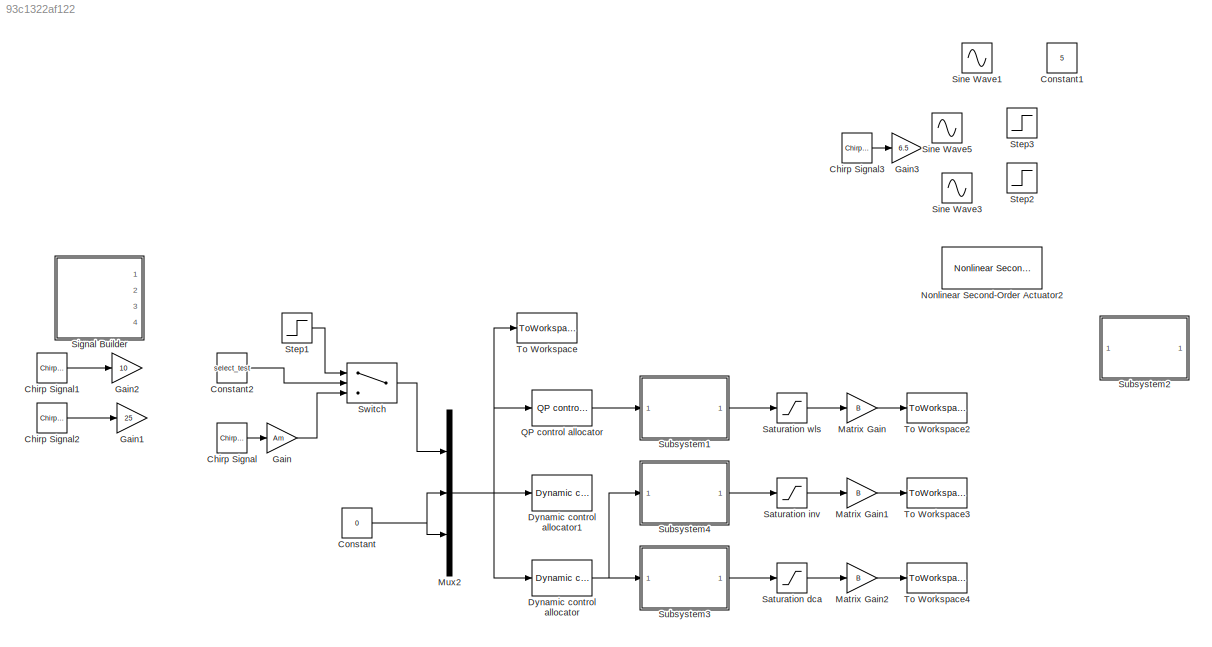
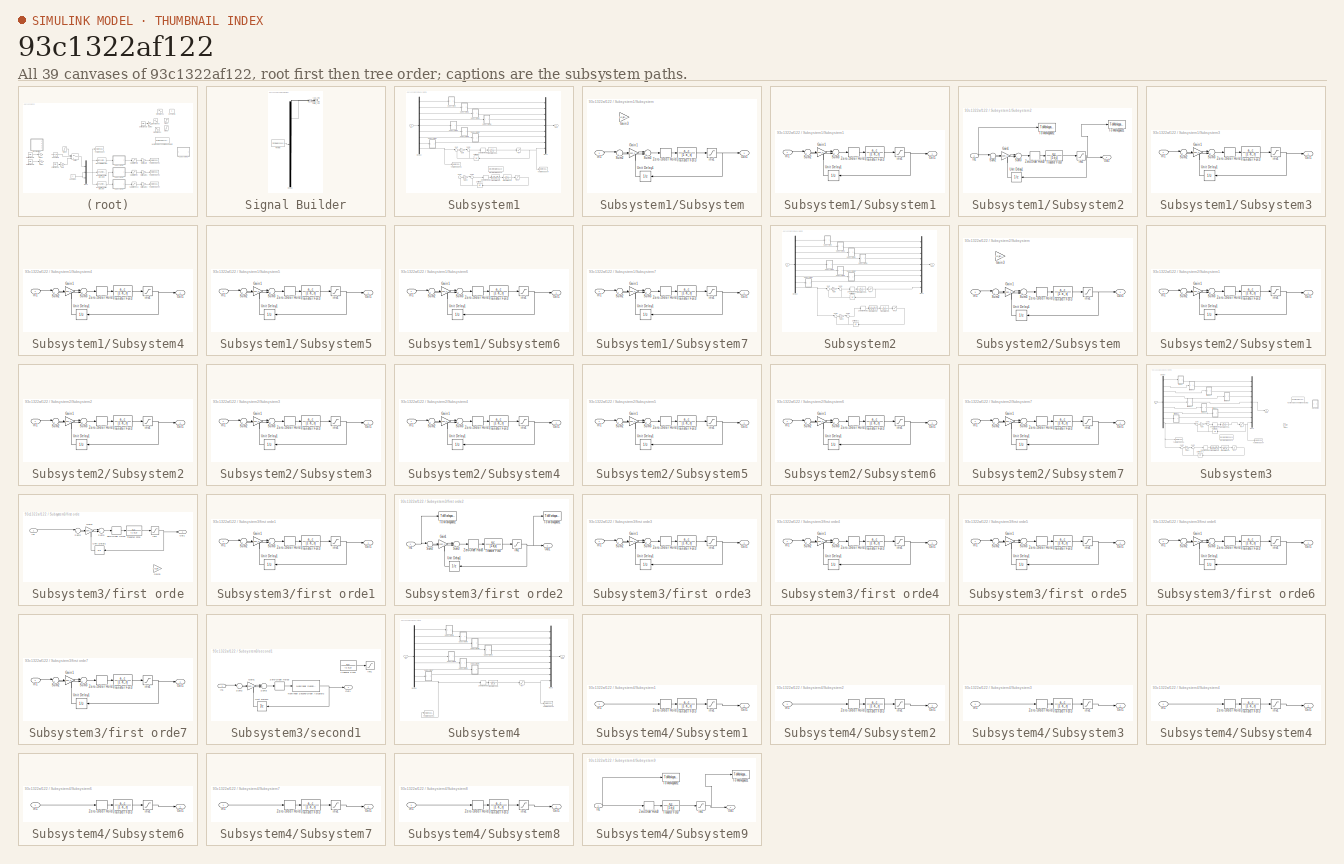
[diagram: thumbnail index - all 39 canvases of the model, root first then tree order]
MODEL slx_93c1322af122
KIND model
CONFIG AbsTol = auto
CONFIG EnableMultiTasking = off
CONFIG FixedStep = 0.01
CONFIG MaxStep = auto
CONFIG MinStep = auto
CONFIG RelTol = 1e-3
CONFIG SampleTimeConstraint = Unconstrained
CONFIG Solver = FixedStepAuto
CONFIG SolverName = FixedStepAuto
CONFIG StartTime = 0.0
CONFIG StopTime = 3
BLOCK [Reference] Chirp Signal  REF=simulink/Sources/Chirp Signal
  Ports = [0, 1]
  SourceBlock = simulink/Sources/Chirp Signal
  SourceProductBaseCode = SL
  SourceProductName = Simulink
  SourceType = chirp
BLOCK [Reference] Chirp Signal1  REF=simulink/Sources/Chirp Signal
  Ports = [0, 1]
  SourceBlock = simulink/Sources/Chirp Signal
  SourceProductBaseCode = SL
  SourceProductName = Simulink
  SourceType = chirp
BLOCK [Reference] Chirp Signal2  REF=simulink/Sources/Chirp Signal
  Ports = [0, 1]
  SourceBlock = simulink/Sources/Chirp Signal
  SourceProductBaseCode = SL
  SourceProductName = Simulink
  SourceType = chirp
BLOCK [Reference] Chirp Signal3  REF=simulink/Sources/Chirp Signal
  Ports = [0, 1]
  SourceBlock = simulink/Sources/Chirp Signal
  SourceProductBaseCode = SL
  SourceProductName = Simulink
  SourceType = chirp
BLOCK [Constant] Constant
  SampleTime = 0.01
  Value = 0
BLOCK [Constant] Constant1
  SampleTime = 0.01
  Value = 5
BLOCK [Constant] Constant2
  SampleTime = 0.01
  Value = select_test
BLOCK [Reference] Dynamic control allocator  REF=qcatlib/Dynamic control allocator  (lib defined in mdl_185632192637, slx_3440b88f227d, +1 more)
  Ports = [1, 1]
  SourceBlock = qcatlib/Dynamic control allocator
  SourceProductName = QP Control Allocation Toolbox
  SourceType = Dynamic control allocator
BLOCK [Reference] Dynamic control allocator1  REF=qcatlib/Dynamic control allocator  (lib defined in mdl_185632192637, slx_3440b88f227d, +1 more)
  Ports = [1, 1]
  SourceBlock = qcatlib/Dynamic control allocator
  SourceProductName = QP Control Allocation Toolbox
  SourceType = Dynamic control allocator
BLOCK [Gain] Gain
  Gain = Am
  OutDataTypeStr = Inherit: Inherit via internal rule
  ParamDataTypeStr = Inherit: Inherit via internal rule
  SaturateOnIntegerOverflow = off
BLOCK [Gain] Gain1
  Gain = 25
  OutDataTypeStr = Inherit: Inherit via internal rule
  ParamDataTypeStr = Inherit: Inherit via internal rule
  SaturateOnIntegerOverflow = off
BLOCK [Gain] Gain2
  Gain = 10
  OutDataTypeStr = Inherit: Inherit via internal rule
  ParamDataTypeStr = Inherit: Inherit via internal rule
  SaturateOnIntegerOverflow = off
BLOCK [Gain] Gain3
  Gain = 6.5
  OutDataTypeStr = Inherit: Inherit via internal rule
  ParamDataTypeStr = Inherit: Inherit via internal rule
  SaturateOnIntegerOverflow = off
BLOCK [Gain] Matrix Gain
  Gain = B
  Multiplication = Matrix(K*u)
BLOCK [Gain] Matrix Gain1
  Gain = B
  Multiplication = Matrix(K*u)
BLOCK [Gain] Matrix Gain2
  Gain = B
  Multiplication = Matrix(K*u)
BLOCK [Mux] Mux2
  DisplayOption = bar
  Inputs = 3
  Ports = [3, 1]
BLOCK [Reference] Nonlinear Second-Order Actuator2  REF=aerolibactuator/Nonlinear Second-Order Actuator
  Ports = [1, 1]
  SourceBlock = aerolibactuator/Nonlinear Second-Order Actuator
  SourceProductBaseCode = AE
  SourceProductName = Aerospace Blockset
  SourceType = NonlinearSecondOrderActuator
BLOCK [Reference] QP control allocator  REF=qcatlib/QP control allocator  (lib defined in mdl_185632192637, slx_3440b88f227d, +1 more)
  Ports = [1, 1]
  SourceBlock = qcatlib/QP control allocator
  SourceProductName = QP Control Allocation Toolbox
  SourceType = QP control allocator
BLOCK [Saturate] Saturation dca
  InputPortMap = u0
  LowerLimit = plim(:,1)
  Ports = [1, 1]
  UpperLimit = plim(:,2)
BLOCK [Saturate] Saturation inv
  InputPortMap = u0
  LowerLimit = plim(:,1)
  Ports = [1, 1]
  UpperLimit = plim(:,2)
BLOCK [Saturate] Saturation wls
  InputPortMap = u0
  LowerLimit = plim(:,1)
  Ports = [1, 1]
  UpperLimit = plim(:,2)
BLOCK [SubSystem] Signal Builder
  ClipboardFcn = sigbuilder_block('clipboard');
  CloseFcn = sigbuilder_block('close');
  ContinueFcn = sigbuilder_block('continue');
  CopyFcn = sigbuilder_block('copy');
  DeleteFcn = sigbuilder_block('delete');
  LoadFcn = sigbuilder_block('load');
  MaskHideContents = on
  ModelCloseFcn = sigbuilder_block('modelClose');
  NameChangeFcn = sigbuilder_block('namechange');
  OpenFcn = sigbuilder_block('open',[42.75 46.5 943.5 423.75 ]);
  PauseFcn = sigbuilder_block('pause');
  Ports = [0, 4]
  PreSaveFcn = sigbuilder_block('preSave');
  RequestExecContextInheritance = off
  StartFcn = sigbuilder_block('start');
  StopFcn = sigbuilder_block('stop');
  Tag = STV Subsys
BLOCK [Demux] Signal Builder/Demux
  Ports = [1, 4]
  Tag = STV Demux
BLOCK [FromWorkspace] Signal Builder/FromWs
  SampleTime = 0
  Tag = STV FromWs
  VariableName = tuvar
  ZeroCross = on
BLOCK [Outport] Signal Builder/picth_cmd
  IconDisplay = Port number
  Port = 2
  Tag = STV Outport
BLOCK [Outport] Signal Builder/roll_cmd
  IconDisplay = Port number
  Tag = STV Outport
BLOCK [Outport] Signal Builder/throttle_cmd
  IconDisplay = Port number
  Port = 4
  Tag = STV Outport
BLOCK [Outport] Signal Builder/yaw_cmd
  IconDisplay = Port number
  Port = 3
  Tag = STV Outport
BLOCK [Sin] Sine Wave1
  Amplitude = 12
  Frequency = 4*pi/2
  Phase = pi/2
  Ports = [0, 1]
  SampleTime = 0.01
BLOCK [Sin] Sine Wave3
  Amplitude = 15
  Frequency = 4*pi/2
  Phase = pi/2
  Ports = [0, 1]
  SampleTime = 0.01
BLOCK [Sin] Sine Wave5
  Amplitude = 5
  Frequency = 4*pi/2
  Ports = [0, 1]
  SampleTime = 0.01
BLOCK [Step] Step1
  After = 6
  SampleTime = 0.01
  Time = 0.2
BLOCK [Step] Step2
  After = 3
  SampleTime = 0.01
  Time = 0.5
BLOCK [Step] Step3
  After = 3
  SampleTime = 0.01
  Time = 0.5
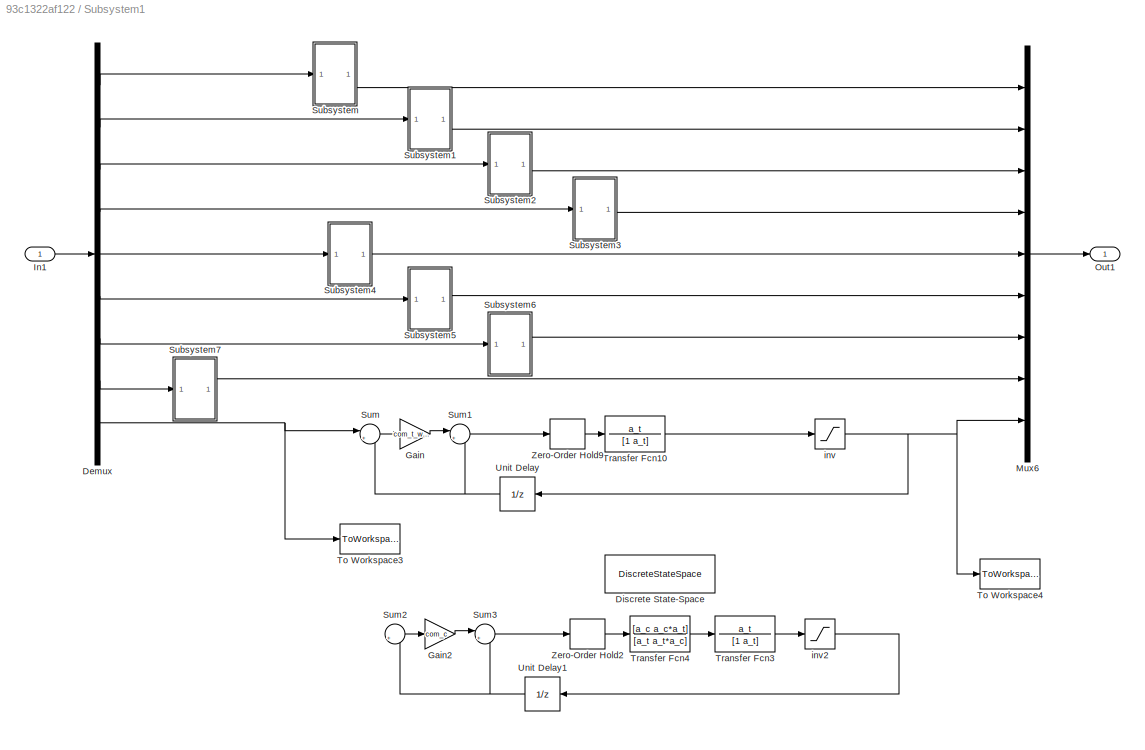
BLOCK [SubSystem] Subsystem1
  Ports = [1, 1]
  RequestExecContextInheritance = off
BLOCK [Demux] Subsystem1/Demux
  DisplayOption = bar
  Outputs = 9
  Ports = [1, 9]
BLOCK [DiscreteStateSpace] Subsystem1/Discrete State-Space
  A = exp(-0.01*a_t)
  B = 1-exp(-0.01*a_t)
  D = 0
  SampleTime = -1
BLOCK [Gain] Subsystem1/Gain
  Gain = com_t_wls
  OutDataTypeStr = Inherit: Inherit via internal rule
  ParamDataTypeStr = Inherit: Inherit via internal rule
  SaturateOnIntegerOverflow = off
BLOCK [Gain] Subsystem1/Gain2
  Gain = com_c
  OutDataTypeStr = Inherit: Inherit via internal rule
  ParamDataTypeStr = Inherit: Inherit via internal rule
  SaturateOnIntegerOverflow = off
BLOCK [Inport] Subsystem1/In1
  IconDisplay = Port number
BLOCK [Mux] Subsystem1/Mux6
  DisplayOption = bar
  Inputs = 9
  Ports = [9, 1]
BLOCK [Outport] Subsystem1/Out1
  IconDisplay = Port number
BLOCK [SubSystem] Subsystem1/Subsystem
  Ports = [1, 1]
  RequestExecContextInheritance = off
BLOCK [Gain] Subsystem1/Subsystem/Gain1
  Gain = com_c
  OutDataTypeStr = Inherit: Inherit via internal rule
  ParamDataTypeStr = Inherit: Inherit via internal rule
  SaturateOnIntegerOverflow = off
BLOCK [Gain] Subsystem1/Subsystem/Gain3
  Gain = 1/p_limits(1)
  OutDataTypeStr = Inherit: Inherit via internal rule
  ParamDataTypeStr = Inherit: Inherit via internal rule
  SaturateOnIntegerOverflow = off
BLOCK [Inport] Subsystem1/Subsystem/In1
  IconDisplay = Port number
BLOCK [Outport] Subsystem1/Subsystem/Out1
  IconDisplay = Port number
BLOCK [Sum] Subsystem1/Subsystem/Sum2
  IconShape = round
  InputSameDT = off
  Inputs = |+-
  OutDataTypeStr = Inherit: Inherit via internal rule
  Ports = [2, 1]
  SaturateOnIntegerOverflow = off
BLOCK [Sum] Subsystem1/Subsystem/Sum3
  IconShape = round
  InputSameDT = off
  Inputs = |++
  OutDataTypeStr = Inherit: Inherit via internal rule
  Ports = [2, 1]
  SaturateOnIntegerOverflow = off
BLOCK [TransferFcn] Subsystem1/Subsystem/Transfer Fcn3
  Denominator = [1 a_c]
  Numerator = a_c
BLOCK [UnitDelay] Subsystem1/Subsystem/Unit Delay1
  InputProcessing = Elements as channels (sample based)
  SampleTime = -1
BLOCK [ZeroOrderHold] Subsystem1/Subsystem/Zero-Order Hold3
  SampleTime = -1
BLOCK [Saturate] Subsystem1/Subsystem/inv1
  InputPortMap = u0
  LowerLimit = -p_limits(1)
  Ports = [1, 1]
  UpperLimit = p_limits(1)
BLOCK [SubSystem] Subsystem1/Subsystem1
  Ports = [1, 1]
  RequestExecContextInheritance = off
BLOCK [Gain] Subsystem1/Subsystem1/Gain1
  Gain = com_c
  OutDataTypeStr = Inherit: Inherit via internal rule
  ParamDataTypeStr = Inherit: Inherit via internal rule
  SaturateOnIntegerOverflow = off
BLOCK [Inport] Subsystem1/Subsystem1/In1
  IconDisplay = Port number
BLOCK [Outport] Subsystem1/Subsystem1/Out1
  IconDisplay = Port number
BLOCK [Sum] Subsystem1/Subsystem1/Sum2
  IconShape = round
  InputSameDT = off
  Inputs = |+-
  OutDataTypeStr = Inherit: Inherit via internal rule
  Ports = [2, 1]
  SaturateOnIntegerOverflow = off
BLOCK [Sum] Subsystem1/Subsystem1/Sum3
  IconShape = round
  InputSameDT = off
  Inputs = |++
  OutDataTypeStr = Inherit: Inherit via internal rule
  Ports = [2, 1]
  SaturateOnIntegerOverflow = off
BLOCK [TransferFcn] Subsystem1/Subsystem1/Transfer Fcn3
  Denominator = [1 a_c]
  Numerator = a_c
BLOCK [UnitDelay] Subsystem1/Subsystem1/Unit Delay1
  InputProcessing = Elements as channels (sample based)
  SampleTime = -1
BLOCK [ZeroOrderHold] Subsystem1/Subsystem1/Zero-Order Hold3
  SampleTime = -1
BLOCK [Saturate] Subsystem1/Subsystem1/inv1
  InputPortMap = u0
  LowerLimit = -p_limits(1)
  Ports = [1, 1]
  UpperLimit = p_limits(1)
BLOCK [SubSystem] Subsystem1/Subsystem2
  Ports = [1, 1]
  RequestExecContextInheritance = off
BLOCK [Gain] Subsystem1/Subsystem2/Gain1
  Gain = com_c
  OutDataTypeStr = Inherit: Inherit via internal rule
  ParamDataTypeStr = Inherit: Inherit via internal rule
  SaturateOnIntegerOverflow = off
BLOCK [Inport] Subsystem1/Subsystem2/In1
  IconDisplay = Port number
BLOCK [Outport] Subsystem1/Subsystem2/Out1
  IconDisplay = Port number
BLOCK [Sum] Subsystem1/Subsystem2/Sum2
  IconShape = round
  InputSameDT = off
  Inputs = |+-
  OutDataTypeStr = Inherit: Inherit via internal rule
  Ports = [2, 1]
  SaturateOnIntegerOverflow = off
BLOCK [Sum] Subsystem1/Subsystem2/Sum3
  IconShape = round
  InputSameDT = off
  Inputs = |++
  OutDataTypeStr = Inherit: Inherit via internal rule
  Ports = [2, 1]
  SaturateOnIntegerOverflow = off
BLOCK [ToWorkspace] Subsystem1/Subsystem2/To Workspace1
  FixptAsFi = on
  MaxDataPoints = inf
  Ports = [1]
  SampleTime = -1
  Save2DSignal = 3-D array (concatenate along third dimension)
  SaveFormat = Timeseries
  VariableName = wls_c_out
BLOCK [ToWorkspace] Subsystem1/Subsystem2/To Workspace2
  FixptAsFi = on
  MaxDataPoints = inf
  Ports = [1]
  SampleTime = -1
  Save2DSignal = 3-D array (concatenate along third dimension)
  SaveFormat = Timeseries
  VariableName = wls_c_in
BLOCK [TransferFcn] Subsystem1/Subsystem2/Transfer Fcn3
  Denominator = [1 a_c]
  Numerator = a_c
BLOCK [UnitDelay] Subsystem1/Subsystem2/Unit Delay1
  InputProcessing = Elements as channels (sample based)
  SampleTime = -1
BLOCK [ZeroOrderHold] Subsystem1/Subsystem2/Zero-Order Hold3
  SampleTime = -1
BLOCK [Saturate] Subsystem1/Subsystem2/inv1
  InputPortMap = u0
  LowerLimit = -p_limits(1)
  Ports = [1, 1]
  UpperLimit = p_limits(1)
BLOCK [SubSystem] Subsystem1/Subsystem3
  Ports = [1, 1]
  RequestExecContextInheritance = off
BLOCK [Gain] Subsystem1/Subsystem3/Gain1
  Gain = com_c
  OutDataTypeStr = Inherit: Inherit via internal rule
  ParamDataTypeStr = Inherit: Inherit via internal rule
  SaturateOnIntegerOverflow = off
BLOCK [Inport] Subsystem1/Subsystem3/In1
  IconDisplay = Port number
BLOCK [Outport] Subsystem1/Subsystem3/Out1
  IconDisplay = Port number
BLOCK [Sum] Subsystem1/Subsystem3/Sum2
  IconShape = round
  InputSameDT = off
  Inputs = |+-
  OutDataTypeStr = Inherit: Inherit via internal rule
  Ports = [2, 1]
  SaturateOnIntegerOverflow = off
BLOCK [Sum] Subsystem1/Subsystem3/Sum3
  IconShape = round
  InputSameDT = off
  Inputs = |++
  OutDataTypeStr = Inherit: Inherit via internal rule
  Ports = [2, 1]
  SaturateOnIntegerOverflow = off
BLOCK [TransferFcn] Subsystem1/Subsystem3/Transfer Fcn3
  Denominator = [1 a_c]
  Numerator = a_c
BLOCK [UnitDelay] Subsystem1/Subsystem3/Unit Delay1
  InputProcessing = Elements as channels (sample based)
  SampleTime = -1
BLOCK [ZeroOrderHold] Subsystem1/Subsystem3/Zero-Order Hold3
  SampleTime = -1
BLOCK [Saturate] Subsystem1/Subsystem3/inv1
  InputPortMap = u0
  LowerLimit = -p_limits(1)
  Ports = [1, 1]
  UpperLimit = p_limits(1)
BLOCK [SubSystem] Subsystem1/Subsystem4
  Ports = [1, 1]
  RequestExecContextInheritance = off
BLOCK [Gain] Subsystem1/Subsystem4/Gain1
  Gain = com_c
  OutDataTypeStr = Inherit: Inherit via internal rule
  ParamDataTypeStr = Inherit: Inherit via internal rule
  SaturateOnIntegerOverflow = off
BLOCK [Inport] Subsystem1/Subsystem4/In1
  IconDisplay = Port number
BLOCK [Outport] Subsystem1/Subsystem4/Out1
  IconDisplay = Port number
BLOCK [Sum] Subsystem1/Subsystem4/Sum2
  IconShape = round
  InputSameDT = off
  Inputs = |+-
  OutDataTypeStr = Inherit: Inherit via internal rule
  Ports = [2, 1]
  SaturateOnIntegerOverflow = off
BLOCK [Sum] Subsystem1/Subsystem4/Sum3
  IconShape = round
  InputSameDT = off
  Inputs = |++
  OutDataTypeStr = Inherit: Inherit via internal rule
  Ports = [2, 1]
  SaturateOnIntegerOverflow = off
BLOCK [TransferFcn] Subsystem1/Subsystem4/Transfer Fcn3
  Denominator = [1 a_c]
  Numerator = a_c
BLOCK [UnitDelay] Subsystem1/Subsystem4/Unit Delay1
  InputProcessing = Elements as channels (sample based)
  SampleTime = -1
BLOCK [ZeroOrderHold] Subsystem1/Subsystem4/Zero-Order Hold3
  SampleTime = -1
BLOCK [Saturate] Subsystem1/Subsystem4/inv1
  InputPortMap = u0
  LowerLimit = -p_limits(1)
  Ports = [1, 1]
  UpperLimit = p_limits(1)
BLOCK [SubSystem] Subsystem1/Subsystem5
  Ports = [1, 1]
  RequestExecContextInheritance = off
BLOCK [Gain] Subsystem1/Subsystem5/Gain1
  Gain = com_c
  OutDataTypeStr = Inherit: Inherit via internal rule
  ParamDataTypeStr = Inherit: Inherit via internal rule
  SaturateOnIntegerOverflow = off
BLOCK [Inport] Subsystem1/Subsystem5/In1
  IconDisplay = Port number
BLOCK [Outport] Subsystem1/Subsystem5/Out1
  IconDisplay = Port number
BLOCK [Sum] Subsystem1/Subsystem5/Sum2
  IconShape = round
  InputSameDT = off
  Inputs = |+-
  OutDataTypeStr = Inherit: Inherit via internal rule
  Ports = [2, 1]
  SaturateOnIntegerOverflow = off
BLOCK [Sum] Subsystem1/Subsystem5/Sum3
  IconShape = round
  InputSameDT = off
  Inputs = |++
  OutDataTypeStr = Inherit: Inherit via internal rule
  Ports = [2, 1]
  SaturateOnIntegerOverflow = off
BLOCK [TransferFcn] Subsystem1/Subsystem5/Transfer Fcn3
  Denominator = [1 a_c]
  Numerator = a_c
BLOCK [UnitDelay] Subsystem1/Subsystem5/Unit Delay1
  InputProcessing = Elements as channels (sample based)
  SampleTime = -1
BLOCK [ZeroOrderHold] Subsystem1/Subsystem5/Zero-Order Hold3
  SampleTime = -1
BLOCK [Saturate] Subsystem1/Subsystem5/inv1
  InputPortMap = u0
  LowerLimit = -p_limits(1)
  Ports = [1, 1]
  UpperLimit = p_limits(1)
BLOCK [SubSystem] Subsystem1/Subsystem6
  Ports = [1, 1]
  RequestExecContextInheritance = off
BLOCK [Gain] Subsystem1/Subsystem6/Gain1
  Gain = com_c
  OutDataTypeStr = Inherit: Inherit via internal rule
  ParamDataTypeStr = Inherit: Inherit via internal rule
  SaturateOnIntegerOverflow = off
BLOCK [Inport] Subsystem1/Subsystem6/In1
  IconDisplay = Port number
BLOCK [Outport] Subsystem1/Subsystem6/Out1
  IconDisplay = Port number
BLOCK [Sum] Subsystem1/Subsystem6/Sum2
  IconShape = round
  InputSameDT = off
  Inputs = |+-
  OutDataTypeStr = Inherit: Inherit via internal rule
  Ports = [2, 1]
  SaturateOnIntegerOverflow = off
BLOCK [Sum] Subsystem1/Subsystem6/Sum3
  IconShape = round
  InputSameDT = off
  Inputs = |++
  OutDataTypeStr = Inherit: Inherit via internal rule
  Ports = [2, 1]
  SaturateOnIntegerOverflow = off
BLOCK [TransferFcn] Subsystem1/Subsystem6/Transfer Fcn3
  Denominator = [1 a_c]
  Numerator = a_c
BLOCK [UnitDelay] Subsystem1/Subsystem6/Unit Delay1
  InputProcessing = Elements as channels (sample based)
  SampleTime = -1
BLOCK [ZeroOrderHold] Subsystem1/Subsystem6/Zero-Order Hold3
  SampleTime = -1
BLOCK [Saturate] Subsystem1/Subsystem6/inv1
  InputPortMap = u0
  LowerLimit = -p_limits(1)
  Ports = [1, 1]
  UpperLimit = p_limits(1)
BLOCK [SubSystem] Subsystem1/Subsystem7
  Ports = [1, 1]
  RequestExecContextInheritance = off
BLOCK [Gain] Subsystem1/Subsystem7/Gain1
  Gain = com_c
  OutDataTypeStr = Inherit: Inherit via internal rule
  ParamDataTypeStr = Inherit: Inherit via internal rule
  SaturateOnIntegerOverflow = off
BLOCK [Inport] Subsystem1/Subsystem7/In1
  IconDisplay = Port number
BLOCK [Outport] Subsystem1/Subsystem7/Out1
  IconDisplay = Port number
BLOCK [Sum] Subsystem1/Subsystem7/Sum2
  IconShape = round
  InputSameDT = off
  Inputs = |+-
  OutDataTypeStr = Inherit: Inherit via internal rule
  Ports = [2, 1]
  SaturateOnIntegerOverflow = off
BLOCK [Sum] Subsystem1/Subsystem7/Sum3
  IconShape = round
  InputSameDT = off
  Inputs = |++
  OutDataTypeStr = Inherit: Inherit via internal rule
  Ports = [2, 1]
  SaturateOnIntegerOverflow = off
BLOCK [TransferFcn] Subsystem1/Subsystem7/Transfer Fcn3
  Denominator = [1 a_c]
  Numerator = a_c
BLOCK [UnitDelay] Subsystem1/Subsystem7/Unit Delay1
  InputProcessing = Elements as channels (sample based)
  SampleTime = -1
BLOCK [ZeroOrderHold] Subsystem1/Subsystem7/Zero-Order Hold3
  SampleTime = -1
BLOCK [Saturate] Subsystem1/Subsystem7/inv1
  InputPortMap = u0
  LowerLimit = -p_limits(1)
  Ports = [1, 1]
  UpperLimit = p_limits(1)
BLOCK [Sum] Subsystem1/Sum
  IconShape = round
  InputSameDT = off
  Inputs = |+-
  OutDataTypeStr = Inherit: Inherit via internal rule
  Ports = [2, 1]
  SaturateOnIntegerOverflow = off
BLOCK [Sum] Subsystem1/Sum1
  IconShape = round
  InputSameDT = off
  Inputs = |++
  OutDataTypeStr = Inherit: Inherit via internal rule
  Ports = [2, 1]
  SaturateOnIntegerOverflow = off
BLOCK [Sum] Subsystem1/Sum2
  IconShape = round
  InputSameDT = off
  Inputs = |+-
  OutDataTypeStr = Inherit: Inherit via internal rule
  Ports = [2, 1]
  SaturateOnIntegerOverflow = off
BLOCK [Sum] Subsystem1/Sum3
  IconShape = round
  InputSameDT = off
  Inputs = |++
  OutDataTypeStr = Inherit: Inherit via internal rule
  Ports = [2, 1]
  SaturateOnIntegerOverflow = off
BLOCK [ToWorkspace] Subsystem1/To Workspace3
  FixptAsFi = on
  MaxDataPoints = inf
  Ports = [1]
  SampleTime = -1
  Save2DSignal = 3-D array (concatenate along third dimension)
  SaveFormat = Timeseries
  VariableName = wls_in
BLOCK [ToWorkspace] Subsystem1/To Workspace4
  FixptAsFi = on
  MaxDataPoints = inf
  Ports = [1]
  SampleTime = -1
  Save2DSignal = 3-D array (concatenate along third dimension)
  SaveFormat = Timeseries
  VariableName = wls_out
BLOCK [TransferFcn] Subsystem1/Transfer Fcn10
  Denominator = [1 a_t]
  Numerator = a_t
BLOCK [TransferFcn] Subsystem1/Transfer Fcn3
  Denominator = [1 a_t]
  Numerator = a_t
BLOCK [TransferFcn] Subsystem1/Transfer Fcn4
  Denominator = [a_t a_t*a_c]
  Numerator = [a_c a_c*a_t]
BLOCK [UnitDelay] Subsystem1/Unit Delay
  InputProcessing = Elements as channels (sample based)
  SampleTime = -1
BLOCK [UnitDelay] Subsystem1/Unit Delay1
  InputProcessing = Elements as channels (sample based)
  SampleTime = -1
BLOCK [ZeroOrderHold] Subsystem1/Zero-Order Hold2
  SampleTime = -1
BLOCK [ZeroOrderHold] Subsystem1/Zero-Order Hold9
  SampleTime = -1
BLOCK [Saturate] Subsystem1/inv
  InputPortMap = u0
  LowerLimit = -p_limits(2)
  Ports = [1, 1]
  UpperLimit = p_limits(2)
BLOCK [Saturate] Subsystem1/inv2
  InputPortMap = u0
  LowerLimit = -p_limits(2)
  Ports = [1, 1]
  UpperLimit = p_limits(2)
BLOCK [SubSystem] Subsystem2
  Ports = [1, 1]
  RequestExecContextInheritance = off
BLOCK [Demux] Subsystem2/Demux
  DisplayOption = bar
  Outputs = 9
  Ports = [1, 9]
BLOCK [Gain] Subsystem2/Gain
  Gain = com_t_inv
  OutDataTypeStr = Inherit: Inherit via internal rule
  ParamDataTypeStr = Inherit: Inherit via internal rule
  SaturateOnIntegerOverflow = off
BLOCK [Gain] Subsystem2/Gain2
  Gain = com_c
  OutDataTypeStr = Inherit: Inherit via internal rule
  ParamDataTypeStr = Inherit: Inherit via internal rule
  SaturateOnIntegerOverflow = off
BLOCK [Inport] Subsystem2/In1
  IconDisplay = Port number
BLOCK [Mux] Subsystem2/Mux6
  DisplayOption = bar
  Inputs = 9
  Ports = [9, 1]
BLOCK [Outport] Subsystem2/Out1
  IconDisplay = Port number
BLOCK [SubSystem] Subsystem2/Subsystem
  Ports = [1, 1]
  RequestExecContextInheritance = off
BLOCK [Gain] Subsystem2/Subsystem/Gain1
  Gain = com_c
  OutDataTypeStr = Inherit: Inherit via internal rule
  ParamDataTypeStr = Inherit: Inherit via internal rule
  SaturateOnIntegerOverflow = off
BLOCK [Gain] Subsystem2/Subsystem/Gain3
  Gain = 1/p_limits(1)
  OutDataTypeStr = Inherit: Inherit via internal rule
  ParamDataTypeStr = Inherit: Inherit via internal rule
  SaturateOnIntegerOverflow = off
BLOCK [Inport] Subsystem2/Subsystem/In1
  IconDisplay = Port number
BLOCK [Outport] Subsystem2/Subsystem/Out1
  IconDisplay = Port number
BLOCK [Sum] Subsystem2/Subsystem/Sum2
  IconShape = round
  InputSameDT = off
  Inputs = |+-
  OutDataTypeStr = Inherit: Inherit via internal rule
  Ports = [2, 1]
  SaturateOnIntegerOverflow = off
BLOCK [Sum] Subsystem2/Subsystem/Sum3
  IconShape = round
  InputSameDT = off
  Inputs = |++
  OutDataTypeStr = Inherit: Inherit via internal rule
  Ports = [2, 1]
  SaturateOnIntegerOverflow = off
BLOCK [TransferFcn] Subsystem2/Subsystem/Transfer Fcn3
  Denominator = [1 a_c]
  Numerator = a_c
BLOCK [UnitDelay] Subsystem2/Subsystem/Unit Delay1
  InputProcessing = Elements as channels (sample based)
  SampleTime = -1
BLOCK [ZeroOrderHold] Subsystem2/Subsystem/Zero-Order Hold3
  SampleTime = -1
BLOCK [Saturate] Subsystem2/Subsystem/inv1
  InputPortMap = u0
  LowerLimit = -p_limits(1)
  Ports = [1, 1]
  UpperLimit = p_limits(1)
BLOCK [SubSystem] Subsystem2/Subsystem1
  Ports = [1, 1]
  RequestExecContextInheritance = off
BLOCK [Gain] Subsystem2/Subsystem1/Gain1
  Gain = com_c
  OutDataTypeStr = Inherit: Inherit via internal rule
  ParamDataTypeStr = Inherit: Inherit via internal rule
  SaturateOnIntegerOverflow = off
BLOCK [Inport] Subsystem2/Subsystem1/In1
  IconDisplay = Port number
BLOCK [Outport] Subsystem2/Subsystem1/Out1
  IconDisplay = Port number
BLOCK [Sum] Subsystem2/Subsystem1/Sum2
  IconShape = round
  InputSameDT = off
  Inputs = |+-
  OutDataTypeStr = Inherit: Inherit via internal rule
  Ports = [2, 1]
  SaturateOnIntegerOverflow = off
BLOCK [Sum] Subsystem2/Subsystem1/Sum3
  IconShape = round
  InputSameDT = off
  Inputs = |++
  OutDataTypeStr = Inherit: Inherit via internal rule
  Ports = [2, 1]
  SaturateOnIntegerOverflow = off
BLOCK [TransferFcn] Subsystem2/Subsystem1/Transfer Fcn3
  Denominator = [1 a_c]
  Numerator = a_c
BLOCK [UnitDelay] Subsystem2/Subsystem1/Unit Delay1
  InputProcessing = Elements as channels (sample based)
  SampleTime = -1
BLOCK [ZeroOrderHold] Subsystem2/Subsystem1/Zero-Order Hold3
  SampleTime = -1
BLOCK [Saturate] Subsystem2/Subsystem1/inv1
  InputPortMap = u0
  LowerLimit = -p_limits(1)
  Ports = [1, 1]
  UpperLimit = p_limits(1)
BLOCK [SubSystem] Subsystem2/Subsystem2
  Ports = [1, 1]
  RequestExecContextInheritance = off
BLOCK [Gain] Subsystem2/Subsystem2/Gain1
  Gain = com_c
  OutDataTypeStr = Inherit: Inherit via internal rule
  ParamDataTypeStr = Inherit: Inherit via internal rule
  SaturateOnIntegerOverflow = off
BLOCK [Inport] Subsystem2/Subsystem2/In1
  IconDisplay = Port number
BLOCK [Outport] Subsystem2/Subsystem2/Out1
  IconDisplay = Port number
BLOCK [Sum] Subsystem2/Subsystem2/Sum2
  IconShape = round
  InputSameDT = off
  Inputs = |+-
  OutDataTypeStr = Inherit: Inherit via internal rule
  Ports = [2, 1]
  SaturateOnIntegerOverflow = off
BLOCK [Sum] Subsystem2/Subsystem2/Sum3
  IconShape = round
  InputSameDT = off
  Inputs = |++
  OutDataTypeStr = Inherit: Inherit via internal rule
  Ports = [2, 1]
  SaturateOnIntegerOverflow = off
BLOCK [TransferFcn] Subsystem2/Subsystem2/Transfer Fcn3
  Denominator = [1 a_c]
  Numerator = a_c
BLOCK [UnitDelay] Subsystem2/Subsystem2/Unit Delay1
  InputProcessing = Elements as channels (sample based)
  SampleTime = -1
BLOCK [ZeroOrderHold] Subsystem2/Subsystem2/Zero-Order Hold3
  SampleTime = -1
BLOCK [Saturate] Subsystem2/Subsystem2/inv1
  InputPortMap = u0
  LowerLimit = -p_limits(1)
  Ports = [1, 1]
  UpperLimit = p_limits(1)
BLOCK [SubSystem] Subsystem2/Subsystem3
  Ports = [1, 1]
  RequestExecContextInheritance = off
BLOCK [Gain] Subsystem2/Subsystem3/Gain1
  Gain = com_c
  OutDataTypeStr = Inherit: Inherit via internal rule
  ParamDataTypeStr = Inherit: Inherit via internal rule
  SaturateOnIntegerOverflow = off
BLOCK [Inport] Subsystem2/Subsystem3/In1
  IconDisplay = Port number
BLOCK [Outport] Subsystem2/Subsystem3/Out1
  IconDisplay = Port number
BLOCK [Sum] Subsystem2/Subsystem3/Sum2
  IconShape = round
  InputSameDT = off
  Inputs = |+-
  OutDataTypeStr = Inherit: Inherit via internal rule
  Ports = [2, 1]
  SaturateOnIntegerOverflow = off
BLOCK [Sum] Subsystem2/Subsystem3/Sum3
  IconShape = round
  InputSameDT = off
  Inputs = |++
  OutDataTypeStr = Inherit: Inherit via internal rule
  Ports = [2, 1]
  SaturateOnIntegerOverflow = off
BLOCK [TransferFcn] Subsystem2/Subsystem3/Transfer Fcn3
  Denominator = [1 a_c]
  Numerator = a_c
BLOCK [UnitDelay] Subsystem2/Subsystem3/Unit Delay1
  InputProcessing = Elements as channels (sample based)
  SampleTime = -1
BLOCK [ZeroOrderHold] Subsystem2/Subsystem3/Zero-Order Hold3
  SampleTime = -1
BLOCK [Saturate] Subsystem2/Subsystem3/inv1
  InputPortMap = u0
  LowerLimit = -p_limits(1)
  Ports = [1, 1]
  UpperLimit = p_limits(1)
BLOCK [SubSystem] Subsystem2/Subsystem4
  Ports = [1, 1]
  RequestExecContextInheritance = off
BLOCK [Gain] Subsystem2/Subsystem4/Gain1
  Gain = com_c
  OutDataTypeStr = Inherit: Inherit via internal rule
  ParamDataTypeStr = Inherit: Inherit via internal rule
  SaturateOnIntegerOverflow = off
BLOCK [Inport] Subsystem2/Subsystem4/In1
  IconDisplay = Port number
BLOCK [Outport] Subsystem2/Subsystem4/Out1
  IconDisplay = Port number
BLOCK [Sum] Subsystem2/Subsystem4/Sum2
  IconShape = round
  InputSameDT = off
  Inputs = |+-
  OutDataTypeStr = Inherit: Inherit via internal rule
  Ports = [2, 1]
  SaturateOnIntegerOverflow = off
BLOCK [Sum] Subsystem2/Subsystem4/Sum3
  IconShape = round
  InputSameDT = off
  Inputs = |++
  OutDataTypeStr = Inherit: Inherit via internal rule
  Ports = [2, 1]
  SaturateOnIntegerOverflow = off
BLOCK [TransferFcn] Subsystem2/Subsystem4/Transfer Fcn3
  Denominator = [1 a_c]
  Numerator = a_c
BLOCK [UnitDelay] Subsystem2/Subsystem4/Unit Delay1
  InputProcessing = Elements as channels (sample based)
  SampleTime = -1
BLOCK [ZeroOrderHold] Subsystem2/Subsystem4/Zero-Order Hold3
  SampleTime = -1
BLOCK [Saturate] Subsystem2/Subsystem4/inv1
  InputPortMap = u0
  LowerLimit = -p_limits(1)
  Ports = [1, 1]
  UpperLimit = p_limits(1)
BLOCK [SubSystem] Subsystem2/Subsystem5
  Ports = [1, 1]
  RequestExecContextInheritance = off
BLOCK [Gain] Subsystem2/Subsystem5/Gain1
  Gain = com_c
  OutDataTypeStr = Inherit: Inherit via internal rule
  ParamDataTypeStr = Inherit: Inherit via internal rule
  SaturateOnIntegerOverflow = off
BLOCK [Inport] Subsystem2/Subsystem5/In1
  IconDisplay = Port number
BLOCK [Outport] Subsystem2/Subsystem5/Out1
  IconDisplay = Port number
BLOCK [Sum] Subsystem2/Subsystem5/Sum2
  IconShape = round
  InputSameDT = off
  Inputs = |+-
  OutDataTypeStr = Inherit: Inherit via internal rule
  Ports = [2, 1]
  SaturateOnIntegerOverflow = off
BLOCK [Sum] Subsystem2/Subsystem5/Sum3
  IconShape = round
  InputSameDT = off
  Inputs = |++
  OutDataTypeStr = Inherit: Inherit via internal rule
  Ports = [2, 1]
  SaturateOnIntegerOverflow = off
BLOCK [TransferFcn] Subsystem2/Subsystem5/Transfer Fcn3
  Denominator = [1 a_c]
  Numerator = a_c
BLOCK [UnitDelay] Subsystem2/Subsystem5/Unit Delay1
  InputProcessing = Elements as channels (sample based)
  SampleTime = -1
BLOCK [ZeroOrderHold] Subsystem2/Subsystem5/Zero-Order Hold3
  SampleTime = -1
BLOCK [Saturate] Subsystem2/Subsystem5/inv1
  InputPortMap = u0
  LowerLimit = -p_limits(1)
  Ports = [1, 1]
  UpperLimit = p_limits(1)
BLOCK [SubSystem] Subsystem2/Subsystem6
  Ports = [1, 1]
  RequestExecContextInheritance = off
BLOCK [Gain] Subsystem2/Subsystem6/Gain1
  Gain = com_c
  OutDataTypeStr = Inherit: Inherit via internal rule
  ParamDataTypeStr = Inherit: Inherit via internal rule
  SaturateOnIntegerOverflow = off
BLOCK [Inport] Subsystem2/Subsystem6/In1
  IconDisplay = Port number
BLOCK [Outport] Subsystem2/Subsystem6/Out1
  IconDisplay = Port number
BLOCK [Sum] Subsystem2/Subsystem6/Sum2
  IconShape = round
  InputSameDT = off
  Inputs = |+-
  OutDataTypeStr = Inherit: Inherit via internal rule
  Ports = [2, 1]
  SaturateOnIntegerOverflow = off
BLOCK [Sum] Subsystem2/Subsystem6/Sum3
  IconShape = round
  InputSameDT = off
  Inputs = |++
  OutDataTypeStr = Inherit: Inherit via internal rule
  Ports = [2, 1]
  SaturateOnIntegerOverflow = off
BLOCK [TransferFcn] Subsystem2/Subsystem6/Transfer Fcn3
  Denominator = [1 a_c]
  Numerator = a_c
BLOCK [UnitDelay] Subsystem2/Subsystem6/Unit Delay1
  InputProcessing = Elements as channels (sample based)
  SampleTime = -1
BLOCK [ZeroOrderHold] Subsystem2/Subsystem6/Zero-Order Hold3
  SampleTime = -1
BLOCK [Saturate] Subsystem2/Subsystem6/inv1
  InputPortMap = u0
  LowerLimit = -p_limits(1)
  Ports = [1, 1]
  UpperLimit = p_limits(1)
BLOCK [SubSystem] Subsystem2/Subsystem7
  Ports = [1, 1]
  RequestExecContextInheritance = off
BLOCK [Gain] Subsystem2/Subsystem7/Gain1
  Gain = com_c
  OutDataTypeStr = Inherit: Inherit via internal rule
  ParamDataTypeStr = Inherit: Inherit via internal rule
  SaturateOnIntegerOverflow = off
BLOCK [Inport] Subsystem2/Subsystem7/In1
  IconDisplay = Port number
BLOCK [Outport] Subsystem2/Subsystem7/Out1
  IconDisplay = Port number
BLOCK [Sum] Subsystem2/Subsystem7/Sum2
  IconShape = round
  InputSameDT = off
  Inputs = |+-
  OutDataTypeStr = Inherit: Inherit via internal rule
  Ports = [2, 1]
  SaturateOnIntegerOverflow = off
BLOCK [Sum] Subsystem2/Subsystem7/Sum3
  IconShape = round
  InputSameDT = off
  Inputs = |++
  OutDataTypeStr = Inherit: Inherit via internal rule
  Ports = [2, 1]
  SaturateOnIntegerOverflow = off
BLOCK [TransferFcn] Subsystem2/Subsystem7/Transfer Fcn3
  Denominator = [1 a_c]
  Numerator = a_c
BLOCK [UnitDelay] Subsystem2/Subsystem7/Unit Delay1
  InputProcessing = Elements as channels (sample based)
  SampleTime = -1
BLOCK [ZeroOrderHold] Subsystem2/Subsystem7/Zero-Order Hold3
  SampleTime = -1
BLOCK [Saturate] Subsystem2/Subsystem7/inv1
  InputPortMap = u0
  LowerLimit = -p_limits(1)
  Ports = [1, 1]
  UpperLimit = p_limits(1)
BLOCK [Sum] Subsystem2/Sum
  IconShape = round
  InputSameDT = off
  Inputs = |+-
  OutDataTypeStr = Inherit: Inherit via internal rule
  Ports = [2, 1]
  SaturateOnIntegerOverflow = off
BLOCK [Sum] Subsystem2/Sum1
  IconShape = round
  InputSameDT = off
  Inputs = |++
  OutDataTypeStr = Inherit: Inherit via internal rule
  Ports = [2, 1]
  SaturateOnIntegerOverflow = off
BLOCK [Sum] Subsystem2/Sum2
  IconShape = round
  InputSameDT = off
  Inputs = |+-
  OutDataTypeStr = Inherit: Inherit via internal rule
  Ports = [2, 1]
  SaturateOnIntegerOverflow = off
BLOCK [Sum] Subsystem2/Sum3
  IconShape = round
  InputSameDT = off
  Inputs = |++
  OutDataTypeStr = Inherit: Inherit via internal rule
  Ports = [2, 1]
  SaturateOnIntegerOverflow = off
BLOCK [TransferFcn] Subsystem2/Transfer Fcn10
  Denominator = [1 a_t]
  Numerator = a_t
BLOCK [TransferFcn] Subsystem2/Transfer Fcn3
  Denominator = [1 a_t]
  Numerator = a_t
BLOCK [TransferFcn] Subsystem2/Transfer Fcn4
  Denominator = [a_t a_t*a_c]
  Numerator = [a_c a_c*a_t]
BLOCK [UnitDelay] Subsystem2/Unit Delay
  InputProcessing = Elements as channels (sample based)
  SampleTime = -1
BLOCK [UnitDelay] Subsystem2/Unit Delay1
  InputProcessing = Elements as channels (sample based)
  SampleTime = -1
BLOCK [ZeroOrderHold] Subsystem2/Zero-Order Hold2
  SampleTime = -1
BLOCK [ZeroOrderHold] Subsystem2/Zero-Order Hold9
  SampleTime = -1
BLOCK [Saturate] Subsystem2/inv
  InputPortMap = u0
  LowerLimit = -p_limits(2)
  Ports = [1, 1]
  UpperLimit = p_limits(2)
BLOCK [Saturate] Subsystem2/inv2
  InputPortMap = u0
  LowerLimit = -p_limits(2)
  Ports = [1, 1]
  UpperLimit = p_limits(2)
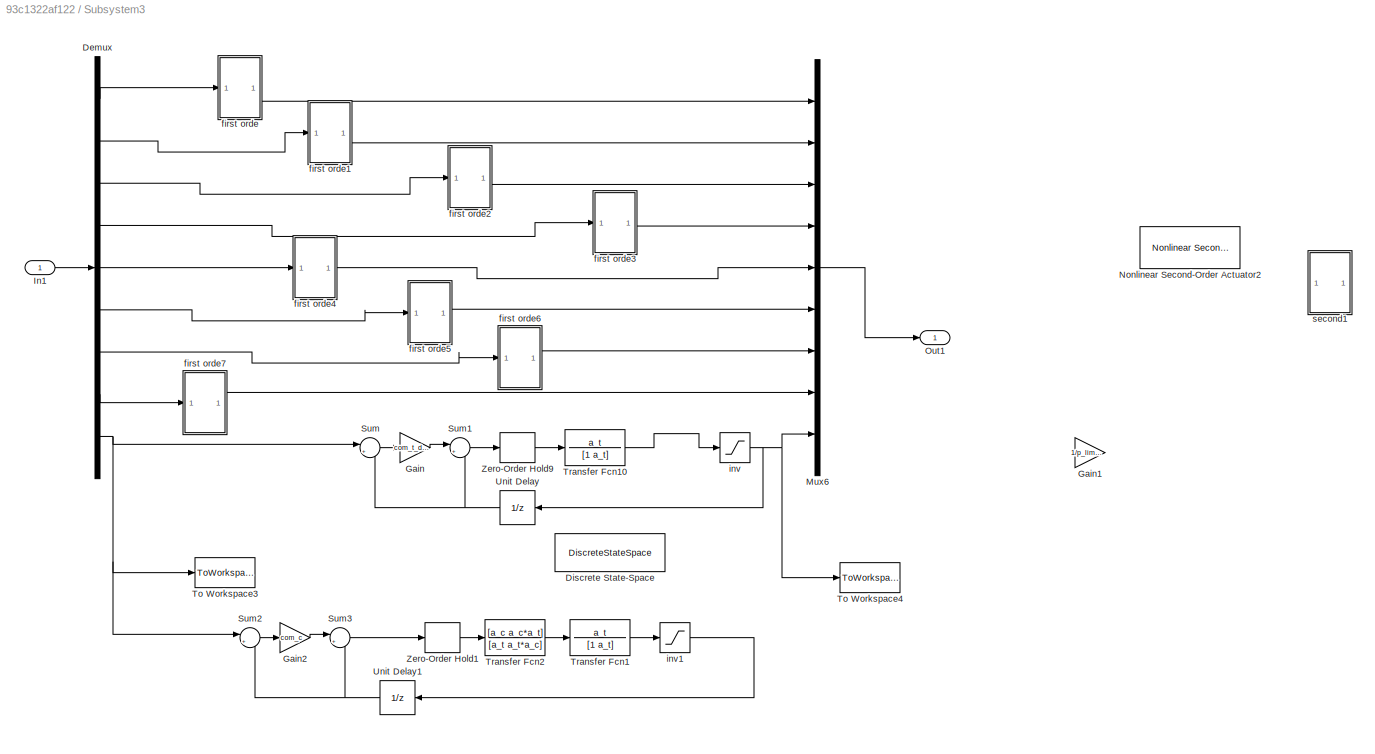
BLOCK [SubSystem] Subsystem3
  Ports = [1, 1]
  RequestExecContextInheritance = off
BLOCK [Demux] Subsystem3/Demux
  DisplayOption = bar
  Outputs = 9
  Ports = [1, 9]
BLOCK [DiscreteStateSpace] Subsystem3/Discrete State-Space
  A = exp(-0.01*a_t)
  B = 1-exp(-0.01*a_t)
  D = 0
  SampleTime = -1
BLOCK [Gain] Subsystem3/Gain
  Gain = com_t_dca
  OutDataTypeStr = Inherit: Inherit via internal rule
  ParamDataTypeStr = Inherit: Inherit via internal rule
  SaturateOnIntegerOverflow = off
BLOCK [Gain] Subsystem3/Gain1
  Gain = 1/p_limits(2)
  OutDataTypeStr = Inherit: Inherit via internal rule
  ParamDataTypeStr = Inherit: Inherit via internal rule
  SaturateOnIntegerOverflow = off
BLOCK [Gain] Subsystem3/Gain2
  Gain = com_c
  OutDataTypeStr = Inherit: Inherit via internal rule
  ParamDataTypeStr = Inherit: Inherit via internal rule
  SaturateOnIntegerOverflow = off
BLOCK [Inport] Subsystem3/In1
  IconDisplay = Port number
BLOCK [Mux] Subsystem3/Mux6
  DisplayOption = bar
  Inputs = 9
  Ports = [9, 1]
BLOCK [Reference] Subsystem3/Nonlinear Second-Order Actuator2  REF=aerolibactuator/Nonlinear Second-Order Actuator
  Ports = [1, 1]
  SourceBlock = aerolibactuator/Nonlinear Second-Order Actuator
  SourceProductBaseCode = AE
  SourceProductName = Aerospace Blockset
  SourceType = NonlinearSecondOrderActuator
BLOCK [Outport] Subsystem3/Out1
  IconDisplay = Port number
BLOCK [Sum] Subsystem3/Sum
  IconShape = round
  InputSameDT = off
  Inputs = |+-
  OutDataTypeStr = Inherit: Inherit via internal rule
  Ports = [2, 1]
  SaturateOnIntegerOverflow = off
BLOCK [Sum] Subsystem3/Sum1
  IconShape = round
  InputSameDT = off
  Inputs = |++
  OutDataTypeStr = Inherit: Inherit via internal rule
  Ports = [2, 1]
  SaturateOnIntegerOverflow = off
BLOCK [Sum] Subsystem3/Sum2
  IconShape = round
  InputSameDT = off
  Inputs = |+-
  OutDataTypeStr = Inherit: Inherit via internal rule
  Ports = [2, 1]
  SaturateOnIntegerOverflow = off
BLOCK [Sum] Subsystem3/Sum3
  IconShape = round
  InputSameDT = off
  Inputs = |++
  OutDataTypeStr = Inherit: Inherit via internal rule
  Ports = [2, 1]
  SaturateOnIntegerOverflow = off
BLOCK [ToWorkspace] Subsystem3/To Workspace3
  FixptAsFi = on
  MaxDataPoints = inf
  Ports = [1]
  SampleTime = -1
  Save2DSignal = 3-D array (concatenate along third dimension)
  SaveFormat = Timeseries
  VariableName = dca_in
BLOCK [ToWorkspace] Subsystem3/To Workspace4
  FixptAsFi = on
  MaxDataPoints = inf
  Ports = [1]
  SampleTime = -1
  Save2DSignal = 3-D array (concatenate along third dimension)
  SaveFormat = Timeseries
  VariableName = dca_out
BLOCK [TransferFcn] Subsystem3/Transfer Fcn1
  Denominator = [1 a_t]
  Numerator = a_t
BLOCK [TransferFcn] Subsystem3/Transfer Fcn10
  Denominator = [1 a_t]
  Numerator = a_t
BLOCK [TransferFcn] Subsystem3/Transfer Fcn2
  Denominator = [a_t a_t*a_c]
  Numerator = [a_c a_c*a_t]
BLOCK [UnitDelay] Subsystem3/Unit Delay
  InputProcessing = Elements as channels (sample based)
  SampleTime = -1
BLOCK [UnitDelay] Subsystem3/Unit Delay1
  InputProcessing = Elements as channels (sample based)
  SampleTime = -1
BLOCK [ZeroOrderHold] Subsystem3/Zero-Order Hold1
  SampleTime = -1
BLOCK [ZeroOrderHold] Subsystem3/Zero-Order Hold9
  SampleTime = -1
BLOCK [SubSystem] Subsystem3/first orde
  Ports = [1, 1]
  RequestExecContextInheritance = off
BLOCK [Gain] Subsystem3/first orde/Gain1
  Gain = com_c
  OutDataTypeStr = Inherit: Inherit via internal rule
  ParamDataTypeStr = Inherit: Inherit via internal rule
  SaturateOnIntegerOverflow = off
BLOCK [Gain] Subsystem3/first orde/Gain3
  Gain = 1/p_limits(1)
  OutDataTypeStr = Inherit: Inherit via internal rule
  ParamDataTypeStr = Inherit: Inherit via internal rule
  SaturateOnIntegerOverflow = off
BLOCK [Inport] Subsystem3/first orde/In1
  IconDisplay = Port number
BLOCK [Outport] Subsystem3/first orde/Out1
  IconDisplay = Port number
BLOCK [Sum] Subsystem3/first orde/Sum2
  IconShape = round
  InputSameDT = off
  Inputs = |+-
  OutDataTypeStr = Inherit: Inherit via internal rule
  Ports = [2, 1]
  SaturateOnIntegerOverflow = off
BLOCK [Sum] Subsystem3/first orde/Sum3
  IconShape = round
  InputSameDT = off
  Inputs = |++
  OutDataTypeStr = Inherit: Inherit via internal rule
  Ports = [2, 1]
  SaturateOnIntegerOverflow = off
BLOCK [TransferFcn] Subsystem3/first orde/Transfer Fcn3
  Denominator = [1 a_c]
  Numerator = a_c
BLOCK [UnitDelay] Subsystem3/first orde/Unit Delay1
  InputProcessing = Elements as channels (sample based)
  SampleTime = -1
BLOCK [ZeroOrderHold] Subsystem3/first orde/Zero-Order Hold3
  SampleTime = -1
BLOCK [Saturate] Subsystem3/first orde/inv1
  InputPortMap = u0
  LowerLimit = -p_limits(1)
  Ports = [1, 1]
  UpperLimit = p_limits(1)
BLOCK [SubSystem] Subsystem3/first orde1
  Ports = [1, 1]
  RequestExecContextInheritance = off
BLOCK [Gain] Subsystem3/first orde1/Gain1
  Gain = com_c
  OutDataTypeStr = Inherit: Inherit via internal rule
  ParamDataTypeStr = Inherit: Inherit via internal rule
  SaturateOnIntegerOverflow = off
BLOCK [Inport] Subsystem3/first orde1/In1
  IconDisplay = Port number
BLOCK [Outport] Subsystem3/first orde1/Out1
  IconDisplay = Port number
BLOCK [Sum] Subsystem3/first orde1/Sum2
  IconShape = round
  InputSameDT = off
  Inputs = |+-
  OutDataTypeStr = Inherit: Inherit via internal rule
  Ports = [2, 1]
  SaturateOnIntegerOverflow = off
BLOCK [Sum] Subsystem3/first orde1/Sum3
  IconShape = round
  InputSameDT = off
  Inputs = |++
  OutDataTypeStr = Inherit: Inherit via internal rule
  Ports = [2, 1]
  SaturateOnIntegerOverflow = off
BLOCK [TransferFcn] Subsystem3/first orde1/Transfer Fcn3
  Denominator = [1 a_c]
  Numerator = a_c
BLOCK [UnitDelay] Subsystem3/first orde1/Unit Delay1
  InputProcessing = Elements as channels (sample based)
  SampleTime = -1
BLOCK [ZeroOrderHold] Subsystem3/first orde1/Zero-Order Hold3
  SampleTime = -1
BLOCK [Saturate] Subsystem3/first orde1/inv1
  InputPortMap = u0
  LowerLimit = -p_limits(1)
  Ports = [1, 1]
  UpperLimit = p_limits(1)
BLOCK [SubSystem] Subsystem3/first orde2
  Ports = [1, 1]
  RequestExecContextInheritance = off
BLOCK [Gain] Subsystem3/first orde2/Gain1
  Gain = com_c
  OutDataTypeStr = Inherit: Inherit via internal rule
  ParamDataTypeStr = Inherit: Inherit via internal rule
  SaturateOnIntegerOverflow = off
BLOCK [Inport] Subsystem3/first orde2/In1
  IconDisplay = Port number
BLOCK [Outport] Subsystem3/first orde2/Out1
  IconDisplay = Port number
BLOCK [Sum] Subsystem3/first orde2/Sum2
  IconShape = round
  InputSameDT = off
  Inputs = |+-
  OutDataTypeStr = Inherit: Inherit via internal rule
  Ports = [2, 1]
  SaturateOnIntegerOverflow = off
BLOCK [Sum] Subsystem3/first orde2/Sum3
  IconShape = round
  InputSameDT = off
  Inputs = |++
  OutDataTypeStr = Inherit: Inherit via internal rule
  Ports = [2, 1]
  SaturateOnIntegerOverflow = off
BLOCK [ToWorkspace] Subsystem3/first orde2/To Workspace1
  FixptAsFi = on
  MaxDataPoints = inf
  Ports = [1]
  SampleTime = -1
  Save2DSignal = 3-D array (concatenate along third dimension)
  SaveFormat = Timeseries
  VariableName = dca_c_out
BLOCK [ToWorkspace] Subsystem3/first orde2/To Workspace2
  FixptAsFi = on
  MaxDataPoints = inf
  Ports = [1]
  SampleTime = -1
  Save2DSignal = 3-D array (concatenate along third dimension)
  SaveFormat = Timeseries
  VariableName = dca_c_in
BLOCK [TransferFcn] Subsystem3/first orde2/Transfer Fcn3
  Denominator = [1 a_c]
  Numerator = a_c
BLOCK [UnitDelay] Subsystem3/first orde2/Unit Delay1
  InputProcessing = Elements as channels (sample based)
  SampleTime = -1
BLOCK [ZeroOrderHold] Subsystem3/first orde2/Zero-Order Hold3
  SampleTime = -1
BLOCK [Saturate] Subsystem3/first orde2/inv1
  InputPortMap = u0
  LowerLimit = -p_limits(1)
  Ports = [1, 1]
  UpperLimit = p_limits(1)
BLOCK [SubSystem] Subsystem3/first orde3
  Ports = [1, 1]
  RequestExecContextInheritance = off
BLOCK [Gain] Subsystem3/first orde3/Gain1
  Gain = com_c
  OutDataTypeStr = Inherit: Inherit via internal rule
  ParamDataTypeStr = Inherit: Inherit via internal rule
  SaturateOnIntegerOverflow = off
BLOCK [Inport] Subsystem3/first orde3/In1
  IconDisplay = Port number
BLOCK [Outport] Subsystem3/first orde3/Out1
  IconDisplay = Port number
BLOCK [Sum] Subsystem3/first orde3/Sum2
  IconShape = round
  InputSameDT = off
  Inputs = |+-
  OutDataTypeStr = Inherit: Inherit via internal rule
  Ports = [2, 1]
  SaturateOnIntegerOverflow = off
BLOCK [Sum] Subsystem3/first orde3/Sum3
  IconShape = round
  InputSameDT = off
  Inputs = |++
  OutDataTypeStr = Inherit: Inherit via internal rule
  Ports = [2, 1]
  SaturateOnIntegerOverflow = off
BLOCK [TransferFcn] Subsystem3/first orde3/Transfer Fcn3
  Denominator = [1 a_c]
  Numerator = a_c
BLOCK [UnitDelay] Subsystem3/first orde3/Unit Delay1
  InputProcessing = Elements as channels (sample based)
  SampleTime = -1
BLOCK [ZeroOrderHold] Subsystem3/first orde3/Zero-Order Hold3
  SampleTime = -1
BLOCK [Saturate] Subsystem3/first orde3/inv1
  InputPortMap = u0
  LowerLimit = -p_limits(1)
  Ports = [1, 1]
  UpperLimit = p_limits(1)
BLOCK [SubSystem] Subsystem3/first orde4
  Ports = [1, 1]
  RequestExecContextInheritance = off
BLOCK [Gain] Subsystem3/first orde4/Gain1
  Gain = com_c
  OutDataTypeStr = Inherit: Inherit via internal rule
  ParamDataTypeStr = Inherit: Inherit via internal rule
  SaturateOnIntegerOverflow = off
BLOCK [Inport] Subsystem3/first orde4/In1
  IconDisplay = Port number
BLOCK [Outport] Subsystem3/first orde4/Out1
  IconDisplay = Port number
BLOCK [Sum] Subsystem3/first orde4/Sum2
  IconShape = round
  InputSameDT = off
  Inputs = |+-
  OutDataTypeStr = Inherit: Inherit via internal rule
  Ports = [2, 1]
  SaturateOnIntegerOverflow = off
BLOCK [Sum] Subsystem3/first orde4/Sum3
  IconShape = round
  InputSameDT = off
  Inputs = |++
  OutDataTypeStr = Inherit: Inherit via internal rule
  Ports = [2, 1]
  SaturateOnIntegerOverflow = off
BLOCK [TransferFcn] Subsystem3/first orde4/Transfer Fcn3
  Denominator = [1 a_c]
  Numerator = a_c
BLOCK [UnitDelay] Subsystem3/first orde4/Unit Delay1
  InputProcessing = Elements as channels (sample based)
  SampleTime = -1
BLOCK [ZeroOrderHold] Subsystem3/first orde4/Zero-Order Hold3
  SampleTime = -1
BLOCK [Saturate] Subsystem3/first orde4/inv1
  InputPortMap = u0
  LowerLimit = -p_limits(1)
  Ports = [1, 1]
  UpperLimit = p_limits(1)
BLOCK [SubSystem] Subsystem3/first orde5
  Ports = [1, 1]
  RequestExecContextInheritance = off
BLOCK [Gain] Subsystem3/first orde5/Gain1
  Gain = com_c
  OutDataTypeStr = Inherit: Inherit via internal rule
  ParamDataTypeStr = Inherit: Inherit via internal rule
  SaturateOnIntegerOverflow = off
BLOCK [Inport] Subsystem3/first orde5/In1
  IconDisplay = Port number
BLOCK [Outport] Subsystem3/first orde5/Out1
  IconDisplay = Port number
BLOCK [Sum] Subsystem3/first orde5/Sum2
  IconShape = round
  InputSameDT = off
  Inputs = |+-
  OutDataTypeStr = Inherit: Inherit via internal rule
  Ports = [2, 1]
  SaturateOnIntegerOverflow = off
BLOCK [Sum] Subsystem3/first orde5/Sum3
  IconShape = round
  InputSameDT = off
  Inputs = |++
  OutDataTypeStr = Inherit: Inherit via internal rule
  Ports = [2, 1]
  SaturateOnIntegerOverflow = off
BLOCK [TransferFcn] Subsystem3/first orde5/Transfer Fcn3
  Denominator = [1 a_c]
  Numerator = a_c
BLOCK [UnitDelay] Subsystem3/first orde5/Unit Delay1
  InputProcessing = Elements as channels (sample based)
  SampleTime = -1
BLOCK [ZeroOrderHold] Subsystem3/first orde5/Zero-Order Hold3
  SampleTime = -1
BLOCK [Saturate] Subsystem3/first orde5/inv1
  InputPortMap = u0
  LowerLimit = -p_limits(1)
  Ports = [1, 1]
  UpperLimit = p_limits(1)
BLOCK [SubSystem] Subsystem3/first orde6
  Ports = [1, 1]
  RequestExecContextInheritance = off
BLOCK [Gain] Subsystem3/first orde6/Gain1
  Gain = com_c
  OutDataTypeStr = Inherit: Inherit via internal rule
  ParamDataTypeStr = Inherit: Inherit via internal rule
  SaturateOnIntegerOverflow = off
BLOCK [Inport] Subsystem3/first orde6/In1
  IconDisplay = Port number
BLOCK [Outport] Subsystem3/first orde6/Out1
  IconDisplay = Port number
BLOCK [Sum] Subsystem3/first orde6/Sum2
  IconShape = round
  InputSameDT = off
  Inputs = |+-
  OutDataTypeStr = Inherit: Inherit via internal rule
  Ports = [2, 1]
  SaturateOnIntegerOverflow = off
BLOCK [Sum] Subsystem3/first orde6/Sum3
  IconShape = round
  InputSameDT = off
  Inputs = |++
  OutDataTypeStr = Inherit: Inherit via internal rule
  Ports = [2, 1]
  SaturateOnIntegerOverflow = off
BLOCK [TransferFcn] Subsystem3/first orde6/Transfer Fcn3
  Denominator = [1 a_c]
  Numerator = a_c
BLOCK [UnitDelay] Subsystem3/first orde6/Unit Delay1
  InputProcessing = Elements as channels (sample based)
  SampleTime = -1
BLOCK [ZeroOrderHold] Subsystem3/first orde6/Zero-Order Hold3
  SampleTime = -1
BLOCK [Saturate] Subsystem3/first orde6/inv1
  InputPortMap = u0
  LowerLimit = -p_limits(1)
  Ports = [1, 1]
  UpperLimit = p_limits(1)
BLOCK [SubSystem] Subsystem3/first orde7
  Ports = [1, 1]
  RequestExecContextInheritance = off
BLOCK [Gain] Subsystem3/first orde7/Gain1
  Gain = com_c
  OutDataTypeStr = Inherit: Inherit via internal rule
  ParamDataTypeStr = Inherit: Inherit via internal rule
  SaturateOnIntegerOverflow = off
BLOCK [Inport] Subsystem3/first orde7/In1
  IconDisplay = Port number
BLOCK [Outport] Subsystem3/first orde7/Out1
  IconDisplay = Port number
BLOCK [Sum] Subsystem3/first orde7/Sum2
  IconShape = round
  InputSameDT = off
  Inputs = |+-
  OutDataTypeStr = Inherit: Inherit via internal rule
  Ports = [2, 1]
  SaturateOnIntegerOverflow = off
BLOCK [Sum] Subsystem3/first orde7/Sum3
  IconShape = round
  InputSameDT = off
  Inputs = |++
  OutDataTypeStr = Inherit: Inherit via internal rule
  Ports = [2, 1]
  SaturateOnIntegerOverflow = off
BLOCK [TransferFcn] Subsystem3/first orde7/Transfer Fcn3
  Denominator = [1 a_c]
  Numerator = a_c
BLOCK [UnitDelay] Subsystem3/first orde7/Unit Delay1
  InputProcessing = Elements as channels (sample based)
  SampleTime = -1
BLOCK [ZeroOrderHold] Subsystem3/first orde7/Zero-Order Hold3
  SampleTime = -1
BLOCK [Saturate] Subsystem3/first orde7/inv1
  InputPortMap = u0
  LowerLimit = -p_limits(1)
  Ports = [1, 1]
  UpperLimit = p_limits(1)
BLOCK [Saturate] Subsystem3/inv
  InputPortMap = u0
  LowerLimit = -p_limits(2)
  Ports = [1, 1]
  UpperLimit = p_limits(2)
BLOCK [Saturate] Subsystem3/inv1
  InputPortMap = u0
  LowerLimit = -p_limits(2)
  Ports = [1, 1]
  UpperLimit = p_limits(2)
BLOCK [SubSystem] Subsystem3/second1
  Ports = [1, 1]
  RequestExecContextInheritance = off
BLOCK [Gain] Subsystem3/second1/Gain1
  Gain = com_c
  OutDataTypeStr = Inherit: Inherit via internal rule
  ParamDataTypeStr = Inherit: Inherit via internal rule
  SaturateOnIntegerOverflow = off
BLOCK [Inport] Subsystem3/second1/In1
  IconDisplay = Port number
BLOCK [Reference] Subsystem3/second1/Nonlinear Second-Order Actuator2  REF=aerolibactuator/Nonlinear Second-Order Actuator
  Ports = [1, 1]
  SourceBlock = aerolibactuator/Nonlinear Second-Order Actuator
  SourceProductBaseCode = AE
  SourceProductName = Aerospace Blockset
  SourceType = NonlinearSecondOrderActuator
BLOCK [Outport] Subsystem3/second1/Out1
  IconDisplay = Port number
BLOCK [Sum] Subsystem3/second1/Sum2
  IconShape = round
  InputSameDT = off
  Inputs = |+-
  OutDataTypeStr = Inherit: Inherit via internal rule
  Ports = [2, 1]
  SaturateOnIntegerOverflow = off
BLOCK [Sum] Subsystem3/second1/Sum3
  IconShape = round
  InputSameDT = off
  Inputs = |++
  OutDataTypeStr = Inherit: Inherit via internal rule
  Ports = [2, 1]
  SaturateOnIntegerOverflow = off
BLOCK [TransferFcn] Subsystem3/second1/Transfer Fcn3
  Denominator = [1 a_c]
  Numerator = a_c
BLOCK [UnitDelay] Subsystem3/second1/Unit Delay1
  InputProcessing = Elements as channels (sample based)
  SampleTime = -1
BLOCK [ZeroOrderHold] Subsystem3/second1/Zero-Order Hold3
  SampleTime = -1
BLOCK [Saturate] Subsystem3/second1/inv1
  InputPortMap = u0
  LowerLimit = -p_limits(1)
  Ports = [1, 1]
  UpperLimit = p_limits(1)
BLOCK [SubSystem] Subsystem4
  Ports = [1, 1]
  RequestExecContextInheritance = off
BLOCK [Demux] Subsystem4/Demux
  DisplayOption = bar
  Outputs = 9
  Ports = [1, 9]
BLOCK [Inport] Subsystem4/In1
  IconDisplay = Port number
BLOCK [Mux] Subsystem4/Mux6
  DisplayOption = bar
  Inputs = 9
  Ports = [9, 1]
BLOCK [Outport] Subsystem4/Out1
  IconDisplay = Port number
BLOCK [SubSystem] Subsystem4/Subsystem1
  Ports = [1, 1]
  RequestExecContextInheritance = off
BLOCK [Inport] Subsystem4/Subsystem1/In1
  IconDisplay = Port number
BLOCK [Outport] Subsystem4/Subsystem1/Out1
  IconDisplay = Port number
BLOCK [TransferFcn] Subsystem4/Subsystem1/Transfer Fcn3
  Denominator = [1 a_c]
  Numerator = a_c
BLOCK [ZeroOrderHold] Subsystem4/Subsystem1/Zero-Order Hold3
  SampleTime = -1
BLOCK [Saturate] Subsystem4/Subsystem1/inv1
  InputPortMap = u0
  LowerLimit = -p_limits(1)
  Ports = [1, 1]
  UpperLimit = p_limits(1)
BLOCK [SubSystem] Subsystem4/Subsystem2
  Ports = [1, 1]
  RequestExecContextInheritance = off
BLOCK [Inport] Subsystem4/Subsystem2/In1
  IconDisplay = Port number
BLOCK [Outport] Subsystem4/Subsystem2/Out1
  IconDisplay = Port number
BLOCK [TransferFcn] Subsystem4/Subsystem2/Transfer Fcn3
  Denominator = [1 a_c]
  Numerator = a_c
BLOCK [ZeroOrderHold] Subsystem4/Subsystem2/Zero-Order Hold3
  SampleTime = -1
BLOCK [Saturate] Subsystem4/Subsystem2/inv1
  InputPortMap = u0
  LowerLimit = -p_limits(1)
  Ports = [1, 1]
  UpperLimit = p_limits(1)
BLOCK [SubSystem] Subsystem4/Subsystem3
  Ports = [1, 1]
  RequestExecContextInheritance = off
BLOCK [Inport] Subsystem4/Subsystem3/In1
  IconDisplay = Port number
BLOCK [Outport] Subsystem4/Subsystem3/Out1
  IconDisplay = Port number
BLOCK [TransferFcn] Subsystem4/Subsystem3/Transfer Fcn3
  Denominator = [1 a_c]
  Numerator = a_c
BLOCK [ZeroOrderHold] Subsystem4/Subsystem3/Zero-Order Hold3
  SampleTime = -1
BLOCK [Saturate] Subsystem4/Subsystem3/inv1
  InputPortMap = u0
  LowerLimit = -p_limits(1)
  Ports = [1, 1]
  UpperLimit = p_limits(1)
BLOCK [SubSystem] Subsystem4/Subsystem4
  Ports = [1, 1]
  RequestExecContextInheritance = off
BLOCK [Inport] Subsystem4/Subsystem4/In1
  IconDisplay = Port number
BLOCK [Outport] Subsystem4/Subsystem4/Out1
  IconDisplay = Port number
BLOCK [TransferFcn] Subsystem4/Subsystem4/Transfer Fcn3
  Denominator = [1 a_c]
  Numerator = a_c
BLOCK [ZeroOrderHold] Subsystem4/Subsystem4/Zero-Order Hold3
  SampleTime = -1
BLOCK [Saturate] Subsystem4/Subsystem4/inv1
  InputPortMap = u0
  LowerLimit = -p_limits(1)
  Ports = [1, 1]
  UpperLimit = p_limits(1)
BLOCK [SubSystem] Subsystem4/Subsystem6
  Ports = [1, 1]
  RequestExecContextInheritance = off
BLOCK [Inport] Subsystem4/Subsystem6/In1
  IconDisplay = Port number
BLOCK [Outport] Subsystem4/Subsystem6/Out1
  IconDisplay = Port number
BLOCK [TransferFcn] Subsystem4/Subsystem6/Transfer Fcn3
  Denominator = [1 a_c]
  Numerator = a_c
BLOCK [ZeroOrderHold] Subsystem4/Subsystem6/Zero-Order Hold3
  SampleTime = -1
BLOCK [Saturate] Subsystem4/Subsystem6/inv1
  InputPortMap = u0
  LowerLimit = -p_limits(1)
  Ports = [1, 1]
  UpperLimit = p_limits(1)
BLOCK [SubSystem] Subsystem4/Subsystem7
  Ports = [1, 1]
  RequestExecContextInheritance = off
BLOCK [Inport] Subsystem4/Subsystem7/In1
  IconDisplay = Port number
BLOCK [Outport] Subsystem4/Subsystem7/Out1
  IconDisplay = Port number
BLOCK [TransferFcn] Subsystem4/Subsystem7/Transfer Fcn3
  Denominator = [1 a_c]
  Numerator = a_c
BLOCK [ZeroOrderHold] Subsystem4/Subsystem7/Zero-Order Hold3
  SampleTime = -1
BLOCK [Saturate] Subsystem4/Subsystem7/inv1
  InputPortMap = u0
  LowerLimit = -p_limits(1)
  Ports = [1, 1]
  UpperLimit = p_limits(1)
BLOCK [SubSystem] Subsystem4/Subsystem8
  Ports = [1, 1]
  RequestExecContextInheritance = off
BLOCK [Inport] Subsystem4/Subsystem8/In1
  IconDisplay = Port number
BLOCK [Outport] Subsystem4/Subsystem8/Out1
  IconDisplay = Port number
BLOCK [TransferFcn] Subsystem4/Subsystem8/Transfer Fcn3
  Denominator = [1 a_c]
  Numerator = a_c
BLOCK [ZeroOrderHold] Subsystem4/Subsystem8/Zero-Order Hold3
  SampleTime = -1
BLOCK [Saturate] Subsystem4/Subsystem8/inv1
  InputPortMap = u0
  LowerLimit = -p_limits(1)
  Ports = [1, 1]
  UpperLimit = p_limits(1)
BLOCK [SubSystem] Subsystem4/Subsystem9
  Ports = [1, 1]
  RequestExecContextInheritance = off
BLOCK [Inport] Subsystem4/Subsystem9/In1
  IconDisplay = Port number
BLOCK [Outport] Subsystem4/Subsystem9/Out1
  IconDisplay = Port number
BLOCK [ToWorkspace] Subsystem4/Subsystem9/To Workspace1
  FixptAsFi = on
  MaxDataPoints = inf
  Ports = [1]
  SampleTime = -1
  Save2DSignal = 3-D array (concatenate along third dimension)
  SaveFormat = Timeseries
  VariableName = wls_c_out_off
BLOCK [ToWorkspace] Subsystem4/Subsystem9/To Workspace2
  FixptAsFi = on
  MaxDataPoints = inf
  Ports = [1]
  SampleTime = -1
  Save2DSignal = 3-D array (concatenate along third dimension)
  SaveFormat = Timeseries
  VariableName = wls_c_in_off
BLOCK [TransferFcn] Subsystem4/Subsystem9/Transfer Fcn3
  Denominator = [1 a_c]
  Numerator = a_c
BLOCK [ZeroOrderHold] Subsystem4/Subsystem9/Zero-Order Hold3
  SampleTime = -1
BLOCK [Saturate] Subsystem4/Subsystem9/inv1
  InputPortMap = u0
  LowerLimit = -p_limits(1)
  Ports = [1, 1]
  UpperLimit = p_limits(1)
BLOCK [ToWorkspace] Subsystem4/To Workspace3
  FixptAsFi = on
  MaxDataPoints = inf
  Ports = [1]
  SampleTime = -1
  Save2DSignal = 3-D array (concatenate along third dimension)
  SaveFormat = Timeseries
  VariableName = wls_in_off
BLOCK [ToWorkspace] Subsystem4/To Workspace4
  FixptAsFi = on
  MaxDataPoints = inf
  Ports = [1]
  SampleTime = -1
  Save2DSignal = 3-D array (concatenate along third dimension)
  SaveFormat = Timeseries
  VariableName = wls_out_off
BLOCK [TransferFcn] Subsystem4/Transfer Fcn10
  Denominator = [1 a_t]
  Numerator = a_t
BLOCK [ZeroOrderHold] Subsystem4/Zero-Order Hold9
  SampleTime = -1
BLOCK [Saturate] Subsystem4/inv
  InputPortMap = u0
  LowerLimit = -p_limits(2)
  Ports = [1, 1]
  UpperLimit = p_limits(2)
BLOCK [Switch] Switch
  Criteria = u2 > Threshold
  InputSameDT = off
  SaturateOnIntegerOverflow = off
BLOCK [ToWorkspace] To Workspace
  FixptAsFi = on
  MaxDataPoints = inf
  Ports = [1]
  SampleTime = -1
  Save2DSignal = 3-D array (concatenate along third dimension)
  SaveFormat = Timeseries
  VariableName = input
BLOCK [ToWorkspace] To Workspace2
  FixptAsFi = on
  MaxDataPoints = inf
  Ports = [1]
  SampleTime = -1
  Save2DSignal = 3-D array (concatenate along third dimension)
  SaveFormat = Timeseries
  VariableName = output_wls
BLOCK [ToWorkspace] To Workspace3
  FixptAsFi = on
  MaxDataPoints = inf
  Ports = [1]
  SampleTime = -1
  Save2DSignal = 3-D array (concatenate along third dimension)
  SaveFormat = Timeseries
  VariableName = output_wls_off
BLOCK [ToWorkspace] To Workspace4
  FixptAsFi = on
  MaxDataPoints = inf
  Ports = [1]
  SampleTime = -1
  Save2DSignal = 3-D array (concatenate along third dimension)
  SaveFormat = Timeseries
  VariableName = output_dca
LINE Chirp Signal1:1 -> Gain2:1
LINE Chirp Signal2:1 -> Gain1:1
LINE Chirp Signal3:1 -> Gain3:1
LINE Chirp Signal:1 -> Gain:1
LINE Constant2:1 -> Switch:2
NET Constant:1 -> Mux2:2, Mux2:3
NET Dynamic control allocator:1 -> Subsystem3:1, Subsystem4:1
LINE Gain:1 -> Switch:3
LINE Matrix Gain1:1 -> To Workspace3:1
LINE Matrix Gain2:1 -> To Workspace4:1
LINE Matrix Gain:1 -> To Workspace2:1
NET Mux2:1 -> Dynamic control allocator1:1, Dynamic control allocator:1, QP control allocator:1, To Workspace:1
LINE QP control allocator:1 -> Subsystem1:1
LINE Saturation dca:1 -> Matrix Gain2:1
LINE Saturation inv:1 -> Matrix Gain1:1
LINE Saturation wls:1 -> Matrix Gain:1
LINE Step1:1 -> Switch:1
LINE Subsystem1/Demux:1 -> Subsystem1/Subsystem:1
LINE Subsystem1/Demux:2 -> Subsystem1/Subsystem1:1
LINE Subsystem1/Demux:3 -> Subsystem1/Subsystem2:1
LINE Subsystem1/Demux:4 -> Subsystem1/Subsystem3:1
LINE Subsystem1/Demux:5 -> Subsystem1/Subsystem4:1
LINE Subsystem1/Demux:6 -> Subsystem1/Subsystem5:1
LINE Subsystem1/Demux:7 -> Subsystem1/Subsystem6:1
LINE Subsystem1/Demux:8 -> Subsystem1/Subsystem7:1
NET Subsystem1/Demux:9 -> Subsystem1/Sum:1, Subsystem1/To Workspace3:1
LINE Subsystem1/Gain2:1 -> Subsystem1/Sum3:1
LINE Subsystem1/Gain:1 -> Subsystem1/Sum1:1
LINE Subsystem1/In1:1 -> Subsystem1/Demux:1
LINE Subsystem1/Mux6:1 -> Subsystem1/Out1:1
LINE Subsystem1/Subsystem/Gain1:1 -> Subsystem1/Subsystem/Sum3:1
LINE Subsystem1/Subsystem/In1:1 -> Subsystem1/Subsystem/Sum2:1
LINE Subsystem1/Subsystem/Sum2:1 -> Subsystem1/Subsystem/Gain1:1
LINE Subsystem1/Subsystem/Sum3:1 -> Subsystem1/Subsystem/Zero-Order Hold3:1
LINE Subsystem1/Subsystem/Transfer Fcn3:1 -> Subsystem1/Subsystem/inv1:1
NET Subsystem1/Subsystem/Unit Delay1:1 -> Subsystem1/Subsystem/Sum2:2, Subsystem1/Subsystem/Sum3:2
LINE Subsystem1/Subsystem/Zero-Order Hold3:1 -> Subsystem1/Subsystem/Transfer Fcn3:1
NET Subsystem1/Subsystem/inv1:1 -> Subsystem1/Subsystem/Out1:1, Subsystem1/Subsystem/Unit Delay1:1
LINE Subsystem1/Subsystem1/Gain1:1 -> Subsystem1/Subsystem1/Sum3:1
LINE Subsystem1/Subsystem1/In1:1 -> Subsystem1/Subsystem1/Sum2:1
LINE Subsystem1/Subsystem1/Sum2:1 -> Subsystem1/Subsystem1/Gain1:1
LINE Subsystem1/Subsystem1/Sum3:1 -> Subsystem1/Subsystem1/Zero-Order Hold3:1
LINE Subsystem1/Subsystem1/Transfer Fcn3:1 -> Subsystem1/Subsystem1/inv1:1
NET Subsystem1/Subsystem1/Unit Delay1:1 -> Subsystem1/Subsystem1/Sum2:2, Subsystem1/Subsystem1/Sum3:2
LINE Subsystem1/Subsystem1/Zero-Order Hold3:1 -> Subsystem1/Subsystem1/Transfer Fcn3:1
NET Subsystem1/Subsystem1/inv1:1 -> Subsystem1/Subsystem1/Out1:1, Subsystem1/Subsystem1/Unit Delay1:1
LINE Subsystem1/Subsystem1:1 -> Subsystem1/Mux6:2
LINE Subsystem1/Subsystem2/Gain1:1 -> Subsystem1/Subsystem2/Sum3:1
NET Subsystem1/Subsystem2/In1:1 -> Subsystem1/Subsystem2/Sum2:1, Subsystem1/Subsystem2/To Workspace2:1
LINE Subsystem1/Subsystem2/Sum2:1 -> Subsystem1/Subsystem2/Gain1:1
LINE Subsystem1/Subsystem2/Sum3:1 -> Subsystem1/Subsystem2/Zero-Order Hold3:1
LINE Subsystem1/Subsystem2/Transfer Fcn3:1 -> Subsystem1/Subsystem2/inv1:1
NET Subsystem1/Subsystem2/Unit Delay1:1 -> Subsystem1/Subsystem2/Sum2:2, Subsystem1/Subsystem2/Sum3:2
LINE Subsystem1/Subsystem2/Zero-Order Hold3:1 -> Subsystem1/Subsystem2/Transfer Fcn3:1
NET Subsystem1/Subsystem2/inv1:1 -> Subsystem1/Subsystem2/Out1:1, Subsystem1/Subsystem2/To Workspace1:1, Subsystem1/Subsystem2/Unit Delay1:1
LINE Subsystem1/Subsystem2:1 -> Subsystem1/Mux6:3
LINE Subsystem1/Subsystem3/Gain1:1 -> Subsystem1/Subsystem3/Sum3:1
LINE Subsystem1/Subsystem3/In1:1 -> Subsystem1/Subsystem3/Sum2:1
LINE Subsystem1/Subsystem3/Sum2:1 -> Subsystem1/Subsystem3/Gain1:1
LINE Subsystem1/Subsystem3/Sum3:1 -> Subsystem1/Subsystem3/Zero-Order Hold3:1
LINE Subsystem1/Subsystem3/Transfer Fcn3:1 -> Subsystem1/Subsystem3/inv1:1
NET Subsystem1/Subsystem3/Unit Delay1:1 -> Subsystem1/Subsystem3/Sum2:2, Subsystem1/Subsystem3/Sum3:2
LINE Subsystem1/Subsystem3/Zero-Order Hold3:1 -> Subsystem1/Subsystem3/Transfer Fcn3:1
NET Subsystem1/Subsystem3/inv1:1 -> Subsystem1/Subsystem3/Out1:1, Subsystem1/Subsystem3/Unit Delay1:1
LINE Subsystem1/Subsystem3:1 -> Subsystem1/Mux6:4
LINE Subsystem1/Subsystem4/Gain1:1 -> Subsystem1/Subsystem4/Sum3:1
LINE Subsystem1/Subsystem4/In1:1 -> Subsystem1/Subsystem4/Sum2:1
LINE Subsystem1/Subsystem4/Sum2:1 -> Subsystem1/Subsystem4/Gain1:1
LINE Subsystem1/Subsystem4/Sum3:1 -> Subsystem1/Subsystem4/Zero-Order Hold3:1
LINE Subsystem1/Subsystem4/Transfer Fcn3:1 -> Subsystem1/Subsystem4/inv1:1
NET Subsystem1/Subsystem4/Unit Delay1:1 -> Subsystem1/Subsystem4/Sum2:2, Subsystem1/Subsystem4/Sum3:2
LINE Subsystem1/Subsystem4/Zero-Order Hold3:1 -> Subsystem1/Subsystem4/Transfer Fcn3:1
NET Subsystem1/Subsystem4/inv1:1 -> Subsystem1/Subsystem4/Out1:1, Subsystem1/Subsystem4/Unit Delay1:1
LINE Subsystem1/Subsystem4:1 -> Subsystem1/Mux6:5
LINE Subsystem1/Subsystem5/Gain1:1 -> Subsystem1/Subsystem5/Sum3:1
LINE Subsystem1/Subsystem5/In1:1 -> Subsystem1/Subsystem5/Sum2:1
LINE Subsystem1/Subsystem5/Sum2:1 -> Subsystem1/Subsystem5/Gain1:1
LINE Subsystem1/Subsystem5/Sum3:1 -> Subsystem1/Subsystem5/Zero-Order Hold3:1
LINE Subsystem1/Subsystem5/Transfer Fcn3:1 -> Subsystem1/Subsystem5/inv1:1
NET Subsystem1/Subsystem5/Unit Delay1:1 -> Subsystem1/Subsystem5/Sum2:2, Subsystem1/Subsystem5/Sum3:2
LINE Subsystem1/Subsystem5/Zero-Order Hold3:1 -> Subsystem1/Subsystem5/Transfer Fcn3:1
NET Subsystem1/Subsystem5/inv1:1 -> Subsystem1/Subsystem5/Out1:1, Subsystem1/Subsystem5/Unit Delay1:1
LINE Subsystem1/Subsystem5:1 -> Subsystem1/Mux6:6
LINE Subsystem1/Subsystem6/Gain1:1 -> Subsystem1/Subsystem6/Sum3:1
LINE Subsystem1/Subsystem6/In1:1 -> Subsystem1/Subsystem6/Sum2:1
LINE Subsystem1/Subsystem6/Sum2:1 -> Subsystem1/Subsystem6/Gain1:1
LINE Subsystem1/Subsystem6/Sum3:1 -> Subsystem1/Subsystem6/Zero-Order Hold3:1
LINE Subsystem1/Subsystem6/Transfer Fcn3:1 -> Subsystem1/Subsystem6/inv1:1
NET Subsystem1/Subsystem6/Unit Delay1:1 -> Subsystem1/Subsystem6/Sum2:2, Subsystem1/Subsystem6/Sum3:2
LINE Subsystem1/Subsystem6/Zero-Order Hold3:1 -> Subsystem1/Subsystem6/Transfer Fcn3:1
NET Subsystem1/Subsystem6/inv1:1 -> Subsystem1/Subsystem6/Out1:1, Subsystem1/Subsystem6/Unit Delay1:1
LINE Subsystem1/Subsystem6:1 -> Subsystem1/Mux6:7
LINE Subsystem1/Subsystem7/Gain1:1 -> Subsystem1/Subsystem7/Sum3:1
LINE Subsystem1/Subsystem7/In1:1 -> Subsystem1/Subsystem7/Sum2:1
LINE Subsystem1/Subsystem7/Sum2:1 -> Subsystem1/Subsystem7/Gain1:1
LINE Subsystem1/Subsystem7/Sum3:1 -> Subsystem1/Subsystem7/Zero-Order Hold3:1
LINE Subsystem1/Subsystem7/Transfer Fcn3:1 -> Subsystem1/Subsystem7/inv1:1
NET Subsystem1/Subsystem7/Unit Delay1:1 -> Subsystem1/Subsystem7/Sum2:2, Subsystem1/Subsystem7/Sum3:2
LINE Subsystem1/Subsystem7/Zero-Order Hold3:1 -> Subsystem1/Subsystem7/Transfer Fcn3:1
NET Subsystem1/Subsystem7/inv1:1 -> Subsystem1/Subsystem7/Out1:1, Subsystem1/Subsystem7/Unit Delay1:1
LINE Subsystem1/Subsystem7:1 -> Subsystem1/Mux6:8
LINE Subsystem1/Subsystem:1 -> Subsystem1/Mux6:1
LINE Subsystem1/Sum1:1 -> Subsystem1/Zero-Order Hold9:1
LINE Subsystem1/Sum2:1 -> Subsystem1/Gain2:1
LINE Subsystem1/Sum3:1 -> Subsystem1/Zero-Order Hold2:1
LINE Subsystem1/Sum:1 -> Subsystem1/Gain:1
LINE Subsystem1/Transfer Fcn10:1 -> Subsystem1/inv:1
LINE Subsystem1/Transfer Fcn3:1 -> Subsystem1/inv2:1
LINE Subsystem1/Transfer Fcn4:1 -> Subsystem1/Transfer Fcn3:1
NET Subsystem1/Unit Delay1:1 -> Subsystem1/Sum2:2, Subsystem1/Sum3:2
NET Subsystem1/Unit Delay:1 -> Subsystem1/Sum1:2, Subsystem1/Sum:2
LINE Subsystem1/Zero-Order Hold2:1 -> Subsystem1/Transfer Fcn4:1
LINE Subsystem1/Zero-Order Hold9:1 -> Subsystem1/Transfer Fcn10:1
LINE Subsystem1/inv2:1 -> Subsystem1/Unit Delay1:1
NET Subsystem1/inv:1 -> Subsystem1/Mux6:9, Subsystem1/To Workspace4:1, Subsystem1/Unit Delay:1
LINE Subsystem1:1 -> Saturation wls:1
LINE Subsystem2/Demux:1 -> Subsystem2/Subsystem:1
LINE Subsystem2/Demux:2 -> Subsystem2/Subsystem1:1
LINE Subsystem2/Demux:3 -> Subsystem2/Subsystem2:1
LINE Subsystem2/Demux:4 -> Subsystem2/Subsystem3:1
LINE Subsystem2/Demux:5 -> Subsystem2/Subsystem4:1
LINE Subsystem2/Demux:6 -> Subsystem2/Subsystem5:1
LINE Subsystem2/Demux:7 -> Subsystem2/Subsystem6:1
LINE Subsystem2/Demux:8 -> Subsystem2/Subsystem7:1
NET Subsystem2/Demux:9 -> Subsystem2/Sum2:1, Subsystem2/Sum:1
LINE Subsystem2/Gain2:1 -> Subsystem2/Sum3:1
LINE Subsystem2/Gain:1 -> Subsystem2/Sum1:1
LINE Subsystem2/In1:1 -> Subsystem2/Demux:1
LINE Subsystem2/Mux6:1 -> Subsystem2/Out1:1
LINE Subsystem2/Subsystem/Gain1:1 -> Subsystem2/Subsystem/Sum3:1
LINE Subsystem2/Subsystem/In1:1 -> Subsystem2/Subsystem/Sum2:1
LINE Subsystem2/Subsystem/Sum2:1 -> Subsystem2/Subsystem/Gain1:1
LINE Subsystem2/Subsystem/Sum3:1 -> Subsystem2/Subsystem/Zero-Order Hold3:1
LINE Subsystem2/Subsystem/Transfer Fcn3:1 -> Subsystem2/Subsystem/inv1:1
NET Subsystem2/Subsystem/Unit Delay1:1 -> Subsystem2/Subsystem/Sum2:2, Subsystem2/Subsystem/Sum3:2
LINE Subsystem2/Subsystem/Zero-Order Hold3:1 -> Subsystem2/Subsystem/Transfer Fcn3:1
NET Subsystem2/Subsystem/inv1:1 -> Subsystem2/Subsystem/Out1:1, Subsystem2/Subsystem/Unit Delay1:1
LINE Subsystem2/Subsystem1/Gain1:1 -> Subsystem2/Subsystem1/Sum3:1
LINE Subsystem2/Subsystem1/In1:1 -> Subsystem2/Subsystem1/Sum2:1
LINE Subsystem2/Subsystem1/Sum2:1 -> Subsystem2/Subsystem1/Gain1:1
LINE Subsystem2/Subsystem1/Sum3:1 -> Subsystem2/Subsystem1/Zero-Order Hold3:1
LINE Subsystem2/Subsystem1/Transfer Fcn3:1 -> Subsystem2/Subsystem1/inv1:1
NET Subsystem2/Subsystem1/Unit Delay1:1 -> Subsystem2/Subsystem1/Sum2:2, Subsystem2/Subsystem1/Sum3:2
LINE Subsystem2/Subsystem1/Zero-Order Hold3:1 -> Subsystem2/Subsystem1/Transfer Fcn3:1
NET Subsystem2/Subsystem1/inv1:1 -> Subsystem2/Subsystem1/Out1:1, Subsystem2/Subsystem1/Unit Delay1:1
LINE Subsystem2/Subsystem1:1 -> Subsystem2/Mux6:2
LINE Subsystem2/Subsystem2/Gain1:1 -> Subsystem2/Subsystem2/Sum3:1
LINE Subsystem2/Subsystem2/In1:1 -> Subsystem2/Subsystem2/Sum2:1
LINE Subsystem2/Subsystem2/Sum2:1 -> Subsystem2/Subsystem2/Gain1:1
LINE Subsystem2/Subsystem2/Sum3:1 -> Subsystem2/Subsystem2/Zero-Order Hold3:1
LINE Subsystem2/Subsystem2/Transfer Fcn3:1 -> Subsystem2/Subsystem2/inv1:1
NET Subsystem2/Subsystem2/Unit Delay1:1 -> Subsystem2/Subsystem2/Sum2:2, Subsystem2/Subsystem2/Sum3:2
LINE Subsystem2/Subsystem2/Zero-Order Hold3:1 -> Subsystem2/Subsystem2/Transfer Fcn3:1
NET Subsystem2/Subsystem2/inv1:1 -> Subsystem2/Subsystem2/Out1:1, Subsystem2/Subsystem2/Unit Delay1:1
LINE Subsystem2/Subsystem2:1 -> Subsystem2/Mux6:3
LINE Subsystem2/Subsystem3/Gain1:1 -> Subsystem2/Subsystem3/Sum3:1
LINE Subsystem2/Subsystem3/In1:1 -> Subsystem2/Subsystem3/Sum2:1
LINE Subsystem2/Subsystem3/Sum2:1 -> Subsystem2/Subsystem3/Gain1:1
LINE Subsystem2/Subsystem3/Sum3:1 -> Subsystem2/Subsystem3/Zero-Order Hold3:1
LINE Subsystem2/Subsystem3/Transfer Fcn3:1 -> Subsystem2/Subsystem3/inv1:1
NET Subsystem2/Subsystem3/Unit Delay1:1 -> Subsystem2/Subsystem3/Sum2:2, Subsystem2/Subsystem3/Sum3:2
LINE Subsystem2/Subsystem3/Zero-Order Hold3:1 -> Subsystem2/Subsystem3/Transfer Fcn3:1
NET Subsystem2/Subsystem3/inv1:1 -> Subsystem2/Subsystem3/Out1:1, Subsystem2/Subsystem3/Unit Delay1:1
LINE Subsystem2/Subsystem3:1 -> Subsystem2/Mux6:4
LINE Subsystem2/Subsystem4/Gain1:1 -> Subsystem2/Subsystem4/Sum3:1
LINE Subsystem2/Subsystem4/In1:1 -> Subsystem2/Subsystem4/Sum2:1
LINE Subsystem2/Subsystem4/Sum2:1 -> Subsystem2/Subsystem4/Gain1:1
LINE Subsystem2/Subsystem4/Sum3:1 -> Subsystem2/Subsystem4/Zero-Order Hold3:1
LINE Subsystem2/Subsystem4/Transfer Fcn3:1 -> Subsystem2/Subsystem4/inv1:1
NET Subsystem2/Subsystem4/Unit Delay1:1 -> Subsystem2/Subsystem4/Sum2:2, Subsystem2/Subsystem4/Sum3:2
LINE Subsystem2/Subsystem4/Zero-Order Hold3:1 -> Subsystem2/Subsystem4/Transfer Fcn3:1
NET Subsystem2/Subsystem4/inv1:1 -> Subsystem2/Subsystem4/Out1:1, Subsystem2/Subsystem4/Unit Delay1:1
LINE Subsystem2/Subsystem4:1 -> Subsystem2/Mux6:5
LINE Subsystem2/Subsystem5/Gain1:1 -> Subsystem2/Subsystem5/Sum3:1
LINE Subsystem2/Subsystem5/In1:1 -> Subsystem2/Subsystem5/Sum2:1
LINE Subsystem2/Subsystem5/Sum2:1 -> Subsystem2/Subsystem5/Gain1:1
LINE Subsystem2/Subsystem5/Sum3:1 -> Subsystem2/Subsystem5/Zero-Order Hold3:1
LINE Subsystem2/Subsystem5/Transfer Fcn3:1 -> Subsystem2/Subsystem5/inv1:1
NET Subsystem2/Subsystem5/Unit Delay1:1 -> Subsystem2/Subsystem5/Sum2:2, Subsystem2/Subsystem5/Sum3:2
LINE Subsystem2/Subsystem5/Zero-Order Hold3:1 -> Subsystem2/Subsystem5/Transfer Fcn3:1
NET Subsystem2/Subsystem5/inv1:1 -> Subsystem2/Subsystem5/Out1:1, Subsystem2/Subsystem5/Unit Delay1:1
LINE Subsystem2/Subsystem5:1 -> Subsystem2/Mux6:6
LINE Subsystem2/Subsystem6/Gain1:1 -> Subsystem2/Subsystem6/Sum3:1
LINE Subsystem2/Subsystem6/In1:1 -> Subsystem2/Subsystem6/Sum2:1
LINE Subsystem2/Subsystem6/Sum2:1 -> Subsystem2/Subsystem6/Gain1:1
LINE Subsystem2/Subsystem6/Sum3:1 -> Subsystem2/Subsystem6/Zero-Order Hold3:1
LINE Subsystem2/Subsystem6/Transfer Fcn3:1 -> Subsystem2/Subsystem6/inv1:1
NET Subsystem2/Subsystem6/Unit Delay1:1 -> Subsystem2/Subsystem6/Sum2:2, Subsystem2/Subsystem6/Sum3:2
LINE Subsystem2/Subsystem6/Zero-Order Hold3:1 -> Subsystem2/Subsystem6/Transfer Fcn3:1
NET Subsystem2/Subsystem6/inv1:1 -> Subsystem2/Subsystem6/Out1:1, Subsystem2/Subsystem6/Unit Delay1:1
LINE Subsystem2/Subsystem6:1 -> Subsystem2/Mux6:7
LINE Subsystem2/Subsystem7/Gain1:1 -> Subsystem2/Subsystem7/Sum3:1
LINE Subsystem2/Subsystem7/In1:1 -> Subsystem2/Subsystem7/Sum2:1
LINE Subsystem2/Subsystem7/Sum2:1 -> Subsystem2/Subsystem7/Gain1:1
LINE Subsystem2/Subsystem7/Sum3:1 -> Subsystem2/Subsystem7/Zero-Order Hold3:1
LINE Subsystem2/Subsystem7/Transfer Fcn3:1 -> Subsystem2/Subsystem7/inv1:1
NET Subsystem2/Subsystem7/Unit Delay1:1 -> Subsystem2/Subsystem7/Sum2:2, Subsystem2/Subsystem7/Sum3:2
LINE Subsystem2/Subsystem7/Zero-Order Hold3:1 -> Subsystem2/Subsystem7/Transfer Fcn3:1
NET Subsystem2/Subsystem7/inv1:1 -> Subsystem2/Subsystem7/Out1:1, Subsystem2/Subsystem7/Unit Delay1:1
LINE Subsystem2/Subsystem7:1 -> Subsystem2/Mux6:8
LINE Subsystem2/Subsystem:1 -> Subsystem2/Mux6:1
LINE Subsystem2/Sum1:1 -> Subsystem2/Zero-Order Hold9:1
LINE Subsystem2/Sum2:1 -> Subsystem2/Gain2:1
LINE Subsystem2/Sum3:1 -> Subsystem2/Zero-Order Hold2:1
LINE Subsystem2/Sum:1 -> Subsystem2/Gain:1
LINE Subsystem2/Transfer Fcn10:1 -> Subsystem2/inv:1
LINE Subsystem2/Transfer Fcn3:1 -> Subsystem2/inv2:1
LINE Subsystem2/Transfer Fcn4:1 -> Subsystem2/Transfer Fcn3:1
NET Subsystem2/Unit Delay1:1 -> Subsystem2/Sum2:2, Subsystem2/Sum3:2
NET Subsystem2/Unit Delay:1 -> Subsystem2/Sum1:2, Subsystem2/Sum:2
LINE Subsystem2/Zero-Order Hold2:1 -> Subsystem2/Transfer Fcn4:1
LINE Subsystem2/Zero-Order Hold9:1 -> Subsystem2/Transfer Fcn10:1
LINE Subsystem2/inv2:1 -> Subsystem2/Unit Delay1:1
NET Subsystem2/inv:1 -> Subsystem2/Mux6:9, Subsystem2/Unit Delay:1
LINE Subsystem3/Demux:1 -> Subsystem3/first orde:1
LINE Subsystem3/Demux:2 -> Subsystem3/first orde1:1
LINE Subsystem3/Demux:3 -> Subsystem3/first orde2:1
LINE Subsystem3/Demux:4 -> Subsystem3/first orde3:1
LINE Subsystem3/Demux:5 -> Subsystem3/first orde4:1
LINE Subsystem3/Demux:6 -> Subsystem3/first orde5:1
LINE Subsystem3/Demux:7 -> Subsystem3/first orde6:1
LINE Subsystem3/Demux:8 -> Subsystem3/first orde7:1
NET Subsystem3/Demux:9 -> Subsystem3/Sum2:1, Subsystem3/Sum:1, Subsystem3/To Workspace3:1
LINE Subsystem3/Gain2:1 -> Subsystem3/Sum3:1
LINE Subsystem3/Gain:1 -> Subsystem3/Sum1:1
LINE Subsystem3/In1:1 -> Subsystem3/Demux:1
LINE Subsystem3/Mux6:1 -> Subsystem3/Out1:1
LINE Subsystem3/Sum1:1 -> Subsystem3/Zero-Order Hold9:1
LINE Subsystem3/Sum2:1 -> Subsystem3/Gain2:1
LINE Subsystem3/Sum3:1 -> Subsystem3/Zero-Order Hold1:1
LINE Subsystem3/Sum:1 -> Subsystem3/Gain:1
LINE Subsystem3/Transfer Fcn10:1 -> Subsystem3/inv:1
LINE Subsystem3/Transfer Fcn1:1 -> Subsystem3/inv1:1
LINE Subsystem3/Transfer Fcn2:1 -> Subsystem3/Transfer Fcn1:1
NET Subsystem3/Unit Delay1:1 -> Subsystem3/Sum2:2, Subsystem3/Sum3:2
NET Subsystem3/Unit Delay:1 -> Subsystem3/Sum1:2, Subsystem3/Sum:2
LINE Subsystem3/Zero-Order Hold1:1 -> Subsystem3/Transfer Fcn2:1
LINE Subsystem3/Zero-Order Hold9:1 -> Subsystem3/Transfer Fcn10:1
LINE Subsystem3/first orde/Gain1:1 -> Subsystem3/first orde/Sum3:1
LINE Subsystem3/first orde/In1:1 -> Subsystem3/first orde/Sum2:1
LINE Subsystem3/first orde/Sum2:1 -> Subsystem3/first orde/Gain1:1
LINE Subsystem3/first orde/Sum3:1 -> Subsystem3/first orde/Zero-Order Hold3:1
LINE Subsystem3/first orde/Transfer Fcn3:1 -> Subsystem3/first orde/inv1:1
NET Subsystem3/first orde/Unit Delay1:1 -> Subsystem3/first orde/Sum2:2, Subsystem3/first orde/Sum3:2
LINE Subsystem3/first orde/Zero-Order Hold3:1 -> Subsystem3/first orde/Transfer Fcn3:1
NET Subsystem3/first orde/inv1:1 -> Subsystem3/first orde/Out1:1, Subsystem3/first orde/Unit Delay1:1
LINE Subsystem3/first orde1/Gain1:1 -> Subsystem3/first orde1/Sum3:1
LINE Subsystem3/first orde1/In1:1 -> Subsystem3/first orde1/Sum2:1
LINE Subsystem3/first orde1/Sum2:1 -> Subsystem3/first orde1/Gain1:1
LINE Subsystem3/first orde1/Sum3:1 -> Subsystem3/first orde1/Zero-Order Hold3:1
LINE Subsystem3/first orde1/Transfer Fcn3:1 -> Subsystem3/first orde1/inv1:1
NET Subsystem3/first orde1/Unit Delay1:1 -> Subsystem3/first orde1/Sum2:2, Subsystem3/first orde1/Sum3:2
LINE Subsystem3/first orde1/Zero-Order Hold3:1 -> Subsystem3/first orde1/Transfer Fcn3:1
NET Subsystem3/first orde1/inv1:1 -> Subsystem3/first orde1/Out1:1, Subsystem3/first orde1/Unit Delay1:1
LINE Subsystem3/first orde1:1 -> Subsystem3/Mux6:2
LINE Subsystem3/first orde2/Gain1:1 -> Subsystem3/first orde2/Sum3:1
NET Subsystem3/first orde2/In1:1 -> Subsystem3/first orde2/Sum2:1, Subsystem3/first orde2/To Workspace2:1
LINE Subsystem3/first orde2/Sum2:1 -> Subsystem3/first orde2/Gain1:1
LINE Subsystem3/first orde2/Sum3:1 -> Subsystem3/first orde2/Zero-Order Hold3:1
LINE Subsystem3/first orde2/Transfer Fcn3:1 -> Subsystem3/first orde2/inv1:1
NET Subsystem3/first orde2/Unit Delay1:1 -> Subsystem3/first orde2/Sum2:2, Subsystem3/first orde2/Sum3:2
LINE Subsystem3/first orde2/Zero-Order Hold3:1 -> Subsystem3/first orde2/Transfer Fcn3:1
NET Subsystem3/first orde2/inv1:1 -> Subsystem3/first orde2/Out1:1, Subsystem3/first orde2/To Workspace1:1, Subsystem3/first orde2/Unit Delay1:1
LINE Subsystem3/first orde2:1 -> Subsystem3/Mux6:3
LINE Subsystem3/first orde3/Gain1:1 -> Subsystem3/first orde3/Sum3:1
LINE Subsystem3/first orde3/In1:1 -> Subsystem3/first orde3/Sum2:1
LINE Subsystem3/first orde3/Sum2:1 -> Subsystem3/first orde3/Gain1:1
LINE Subsystem3/first orde3/Sum3:1 -> Subsystem3/first orde3/Zero-Order Hold3:1
LINE Subsystem3/first orde3/Transfer Fcn3:1 -> Subsystem3/first orde3/inv1:1
NET Subsystem3/first orde3/Unit Delay1:1 -> Subsystem3/first orde3/Sum2:2, Subsystem3/first orde3/Sum3:2
LINE Subsystem3/first orde3/Zero-Order Hold3:1 -> Subsystem3/first orde3/Transfer Fcn3:1
NET Subsystem3/first orde3/inv1:1 -> Subsystem3/first orde3/Out1:1, Subsystem3/first orde3/Unit Delay1:1
LINE Subsystem3/first orde3:1 -> Subsystem3/Mux6:4
LINE Subsystem3/first orde4/Gain1:1 -> Subsystem3/first orde4/Sum3:1
LINE Subsystem3/first orde4/In1:1 -> Subsystem3/first orde4/Sum2:1
LINE Subsystem3/first orde4/Sum2:1 -> Subsystem3/first orde4/Gain1:1
LINE Subsystem3/first orde4/Sum3:1 -> Subsystem3/first orde4/Zero-Order Hold3:1
LINE Subsystem3/first orde4/Transfer Fcn3:1 -> Subsystem3/first orde4/inv1:1
NET Subsystem3/first orde4/Unit Delay1:1 -> Subsystem3/first orde4/Sum2:2, Subsystem3/first orde4/Sum3:2
LINE Subsystem3/first orde4/Zero-Order Hold3:1 -> Subsystem3/first orde4/Transfer Fcn3:1
NET Subsystem3/first orde4/inv1:1 -> Subsystem3/first orde4/Out1:1, Subsystem3/first orde4/Unit Delay1:1
LINE Subsystem3/first orde4:1 -> Subsystem3/Mux6:5
LINE Subsystem3/first orde5/Gain1:1 -> Subsystem3/first orde5/Sum3:1
LINE Subsystem3/first orde5/In1:1 -> Subsystem3/first orde5/Sum2:1
LINE Subsystem3/first orde5/Sum2:1 -> Subsystem3/first orde5/Gain1:1
LINE Subsystem3/first orde5/Sum3:1 -> Subsystem3/first orde5/Zero-Order Hold3:1
LINE Subsystem3/first orde5/Transfer Fcn3:1 -> Subsystem3/first orde5/inv1:1
NET Subsystem3/first orde5/Unit Delay1:1 -> Subsystem3/first orde5/Sum2:2, Subsystem3/first orde5/Sum3:2
LINE Subsystem3/first orde5/Zero-Order Hold3:1 -> Subsystem3/first orde5/Transfer Fcn3:1
NET Subsystem3/first orde5/inv1:1 -> Subsystem3/first orde5/Out1:1, Subsystem3/first orde5/Unit Delay1:1
LINE Subsystem3/first orde5:1 -> Subsystem3/Mux6:6
LINE Subsystem3/first orde6/Gain1:1 -> Subsystem3/first orde6/Sum3:1
LINE Subsystem3/first orde6/In1:1 -> Subsystem3/first orde6/Sum2:1
LINE Subsystem3/first orde6/Sum2:1 -> Subsystem3/first orde6/Gain1:1
LINE Subsystem3/first orde6/Sum3:1 -> Subsystem3/first orde6/Zero-Order Hold3:1
LINE Subsystem3/first orde6/Transfer Fcn3:1 -> Subsystem3/first orde6/inv1:1
NET Subsystem3/first orde6/Unit Delay1:1 -> Subsystem3/first orde6/Sum2:2, Subsystem3/first orde6/Sum3:2
LINE Subsystem3/first orde6/Zero-Order Hold3:1 -> Subsystem3/first orde6/Transfer Fcn3:1
NET Subsystem3/first orde6/inv1:1 -> Subsystem3/first orde6/Out1:1, Subsystem3/first orde6/Unit Delay1:1
LINE Subsystem3/first orde6:1 -> Subsystem3/Mux6:7
LINE Subsystem3/first orde7/Gain1:1 -> Subsystem3/first orde7/Sum3:1
LINE Subsystem3/first orde7/In1:1 -> Subsystem3/first orde7/Sum2:1
LINE Subsystem3/first orde7/Sum2:1 -> Subsystem3/first orde7/Gain1:1
LINE Subsystem3/first orde7/Sum3:1 -> Subsystem3/first orde7/Zero-Order Hold3:1
LINE Subsystem3/first orde7/Transfer Fcn3:1 -> Subsystem3/first orde7/inv1:1
NET Subsystem3/first orde7/Unit Delay1:1 -> Subsystem3/first orde7/Sum2:2, Subsystem3/first orde7/Sum3:2
LINE Subsystem3/first orde7/Zero-Order Hold3:1 -> Subsystem3/first orde7/Transfer Fcn3:1
NET Subsystem3/first orde7/inv1:1 -> Subsystem3/first orde7/Out1:1, Subsystem3/first orde7/Unit Delay1:1
LINE Subsystem3/first orde7:1 -> Subsystem3/Mux6:8
LINE Subsystem3/first orde:1 -> Subsystem3/Mux6:1
LINE Subsystem3/inv1:1 -> Subsystem3/Unit Delay1:1
NET Subsystem3/inv:1 -> Subsystem3/Mux6:9, Subsystem3/To Workspace4:1, Subsystem3/Unit Delay:1
LINE Subsystem3/second1/Gain1:1 -> Subsystem3/second1/Sum3:1
LINE Subsystem3/second1/In1:1 -> Subsystem3/second1/Sum2:1
NET Subsystem3/second1/Nonlinear Second-Order Actuator2:1 -> Subsystem3/second1/Out1:1, Subsystem3/second1/Unit Delay1:1
LINE Subsystem3/second1/Sum2:1 -> Subsystem3/second1/Gain1:1
LINE Subsystem3/second1/Sum3:1 -> Subsystem3/second1/Zero-Order Hold3:1
LINE Subsystem3/second1/Transfer Fcn3:1 -> Subsystem3/second1/inv1:1
NET Subsystem3/second1/Unit Delay1:1 -> Subsystem3/second1/Sum2:2, Subsystem3/second1/Sum3:2
LINE Subsystem3/second1/Zero-Order Hold3:1 -> Subsystem3/second1/Nonlinear Second-Order Actuator2:1
LINE Subsystem3:1 -> Saturation dca:1
LINE Subsystem4/Demux:1 -> Subsystem4/Subsystem8:1
LINE Subsystem4/Demux:2 -> Subsystem4/Subsystem6:1
LINE Subsystem4/Demux:3 -> Subsystem4/Subsystem9:1
LINE Subsystem4/Demux:4 -> Subsystem4/Subsystem4:1
LINE Subsystem4/Demux:5 -> Subsystem4/Subsystem3:1
LINE Subsystem4/Demux:6 -> Subsystem4/Subsystem2:1
LINE Subsystem4/Demux:7 -> Subsystem4/Subsystem1:1
LINE Subsystem4/Demux:8 -> Subsystem4/Subsystem7:1
NET Subsystem4/Demux:9 -> Subsystem4/To Workspace3:1, Subsystem4/Zero-Order Hold9:1
LINE Subsystem4/In1:1 -> Subsystem4/Demux:1
LINE Subsystem4/Mux6:1 -> Subsystem4/Out1:1
LINE Subsystem4/Subsystem1/In1:1 -> Subsystem4/Subsystem1/Zero-Order Hold3:1
LINE Subsystem4/Subsystem1/Transfer Fcn3:1 -> Subsystem4/Subsystem1/inv1:1
LINE Subsystem4/Subsystem1/Zero-Order Hold3:1 -> Subsystem4/Subsystem1/Transfer Fcn3:1
LINE Subsystem4/Subsystem1/inv1:1 -> Subsystem4/Subsystem1/Out1:1
LINE Subsystem4/Subsystem1:1 -> Subsystem4/Mux6:7
LINE Subsystem4/Subsystem2/In1:1 -> Subsystem4/Subsystem2/Zero-Order Hold3:1
LINE Subsystem4/Subsystem2/Transfer Fcn3:1 -> Subsystem4/Subsystem2/inv1:1
LINE Subsystem4/Subsystem2/Zero-Order Hold3:1 -> Subsystem4/Subsystem2/Transfer Fcn3:1
LINE Subsystem4/Subsystem2/inv1:1 -> Subsystem4/Subsystem2/Out1:1
LINE Subsystem4/Subsystem2:1 -> Subsystem4/Mux6:6
LINE Subsystem4/Subsystem3/In1:1 -> Subsystem4/Subsystem3/Zero-Order Hold3:1
LINE Subsystem4/Subsystem3/Transfer Fcn3:1 -> Subsystem4/Subsystem3/inv1:1
LINE Subsystem4/Subsystem3/Zero-Order Hold3:1 -> Subsystem4/Subsystem3/Transfer Fcn3:1
LINE Subsystem4/Subsystem3/inv1:1 -> Subsystem4/Subsystem3/Out1:1
LINE Subsystem4/Subsystem3:1 -> Subsystem4/Mux6:5
LINE Subsystem4/Subsystem4/In1:1 -> Subsystem4/Subsystem4/Zero-Order Hold3:1
LINE Subsystem4/Subsystem4/Transfer Fcn3:1 -> Subsystem4/Subsystem4/inv1:1
LINE Subsystem4/Subsystem4/Zero-Order Hold3:1 -> Subsystem4/Subsystem4/Transfer Fcn3:1
LINE Subsystem4/Subsystem4/inv1:1 -> Subsystem4/Subsystem4/Out1:1
LINE Subsystem4/Subsystem4:1 -> Subsystem4/Mux6:4
LINE Subsystem4/Subsystem6/In1:1 -> Subsystem4/Subsystem6/Zero-Order Hold3:1
LINE Subsystem4/Subsystem6/Transfer Fcn3:1 -> Subsystem4/Subsystem6/inv1:1
LINE Subsystem4/Subsystem6/Zero-Order Hold3:1 -> Subsystem4/Subsystem6/Transfer Fcn3:1
LINE Subsystem4/Subsystem6/inv1:1 -> Subsystem4/Subsystem6/Out1:1
LINE Subsystem4/Subsystem6:1 -> Subsystem4/Mux6:2
LINE Subsystem4/Subsystem7/In1:1 -> Subsystem4/Subsystem7/Zero-Order Hold3:1
LINE Subsystem4/Subsystem7/Transfer Fcn3:1 -> Subsystem4/Subsystem7/inv1:1
LINE Subsystem4/Subsystem7/Zero-Order Hold3:1 -> Subsystem4/Subsystem7/Transfer Fcn3:1
LINE Subsystem4/Subsystem7/inv1:1 -> Subsystem4/Subsystem7/Out1:1
LINE Subsystem4/Subsystem7:1 -> Subsystem4/Mux6:8
LINE Subsystem4/Subsystem8/In1:1 -> Subsystem4/Subsystem8/Zero-Order Hold3:1
LINE Subsystem4/Subsystem8/Transfer Fcn3:1 -> Subsystem4/Subsystem8/inv1:1
LINE Subsystem4/Subsystem8/Zero-Order Hold3:1 -> Subsystem4/Subsystem8/Transfer Fcn3:1
LINE Subsystem4/Subsystem8/inv1:1 -> Subsystem4/Subsystem8/Out1:1
LINE Subsystem4/Subsystem8:1 -> Subsystem4/Mux6:1
NET Subsystem4/Subsystem9/In1:1 -> Subsystem4/Subsystem9/To Workspace2:1, Subsystem4/Subsystem9/Zero-Order Hold3:1
LINE Subsystem4/Subsystem9/Transfer Fcn3:1 -> Subsystem4/Subsystem9/inv1:1
LINE Subsystem4/Subsystem9/Zero-Order Hold3:1 -> Subsystem4/Subsystem9/Transfer Fcn3:1
NET Subsystem4/Subsystem9/inv1:1 -> Subsystem4/Subsystem9/Out1:1, Subsystem4/Subsystem9/To Workspace1:1
LINE Subsystem4/Subsystem9:1 -> Subsystem4/Mux6:3
LINE Subsystem4/Transfer Fcn10:1 -> Subsystem4/inv:1
LINE Subsystem4/Zero-Order Hold9:1 -> Subsystem4/Transfer Fcn10:1
NET Subsystem4/inv:1 -> Subsystem4/Mux6:9, Subsystem4/To Workspace4:1
LINE Subsystem4:1 -> Saturation inv:1
LINE Switch:1 -> Mux2:1
note: NET lines group one-source signal fan-out (src -> all destinations, sorted); 1:1 wires keep LINE
